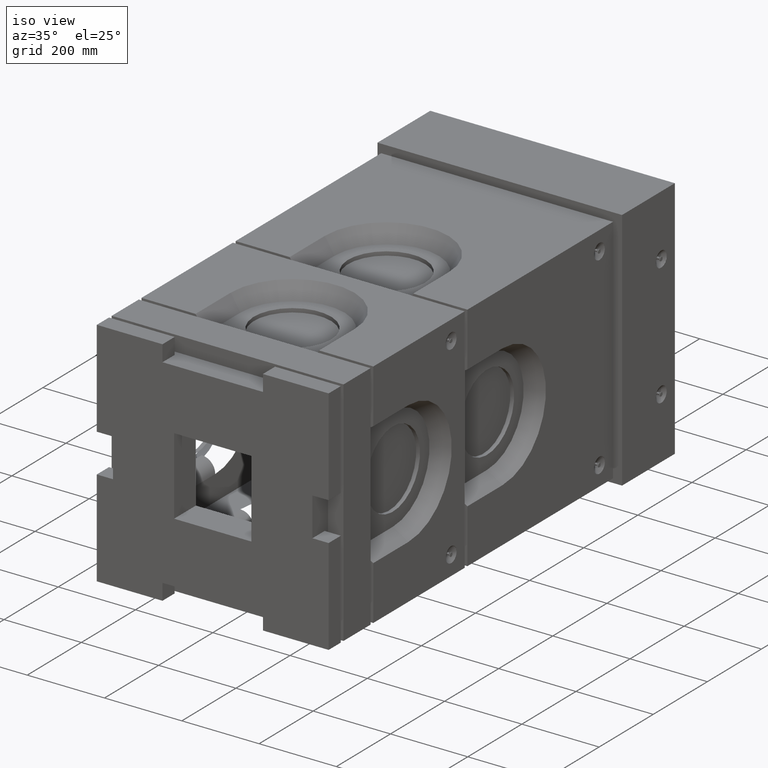
[diagram: clean part render]
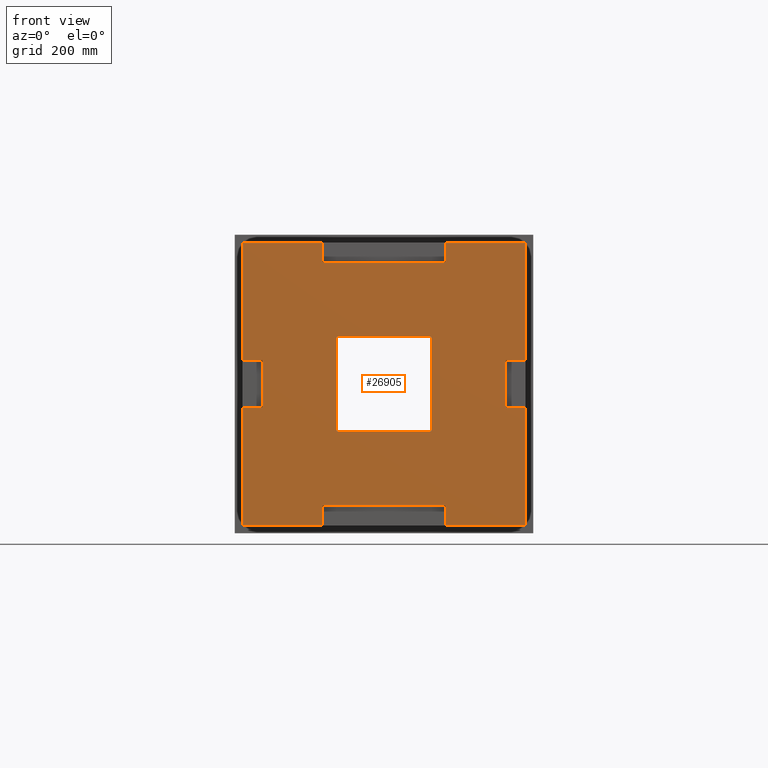
[diagram: tour spotlight — one face highlighted and labeled with its STEP entity id]
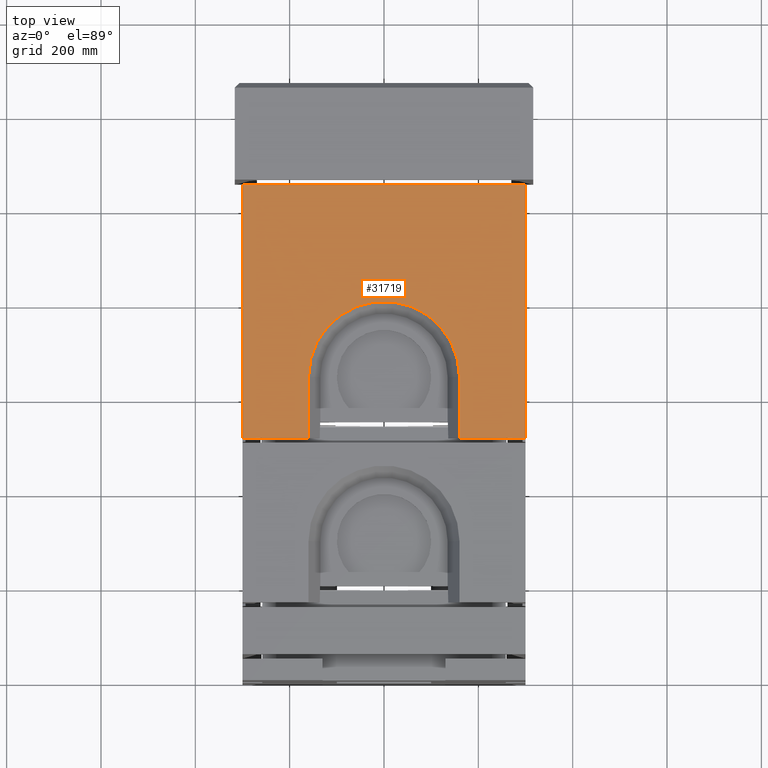
[diagram: tour spotlight — one face highlighted and labeled with its STEP entity id]
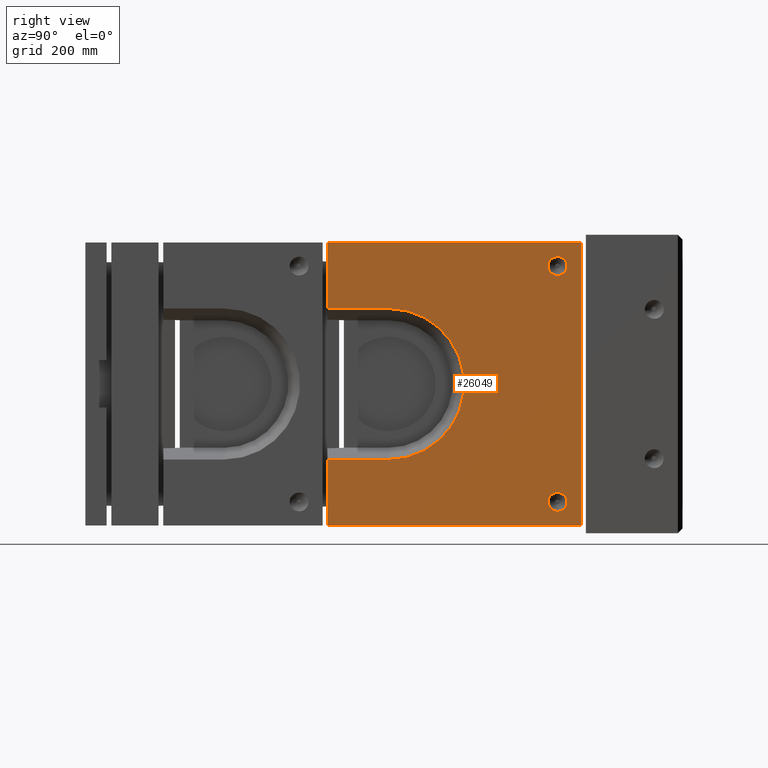
[diagram: tour spotlight — one face highlighted and labeled with its STEP entity id]
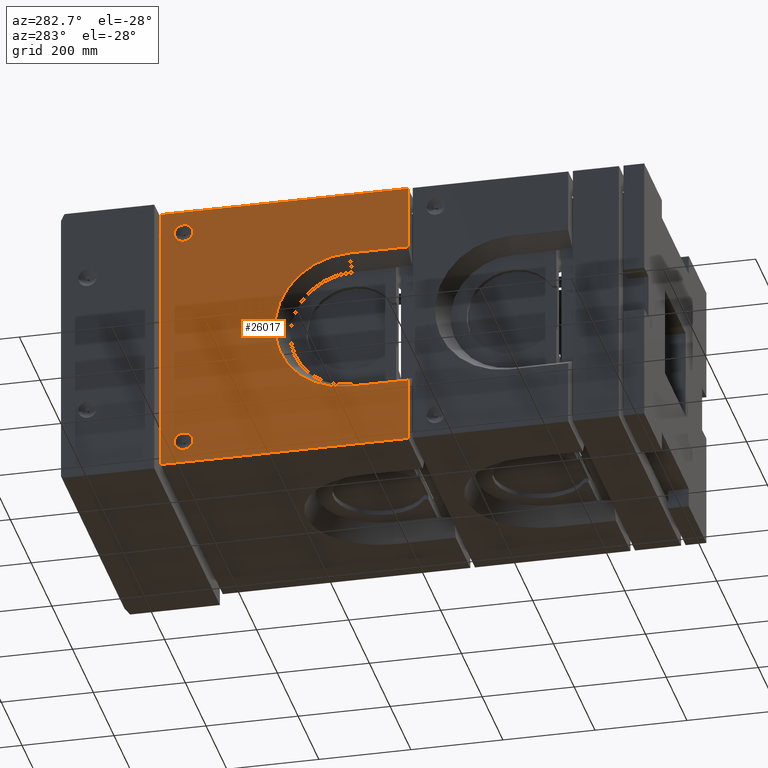
[diagram: tour spotlight — one face highlighted and labeled with its STEP entity id]
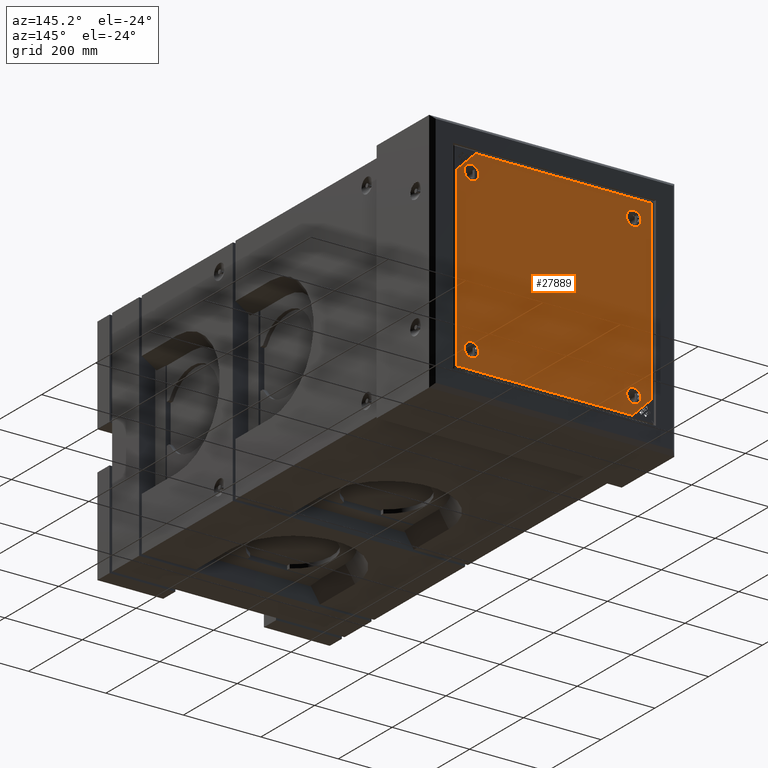
[diagram: tour spotlight — one face highlighted and labeled with its STEP entity id]
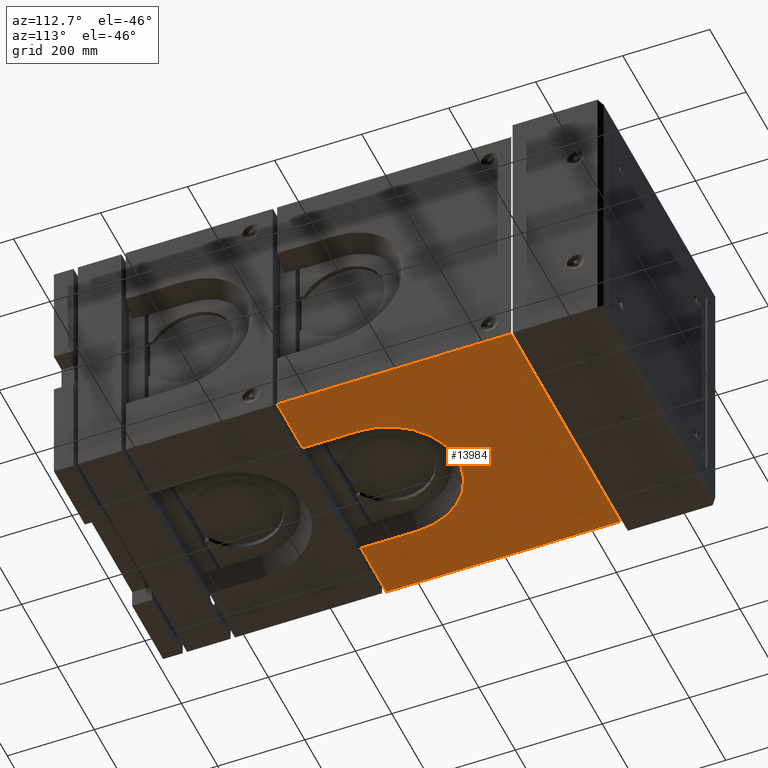
[diagram: tour spotlight — one face highlighted and labeled with its STEP entity id]
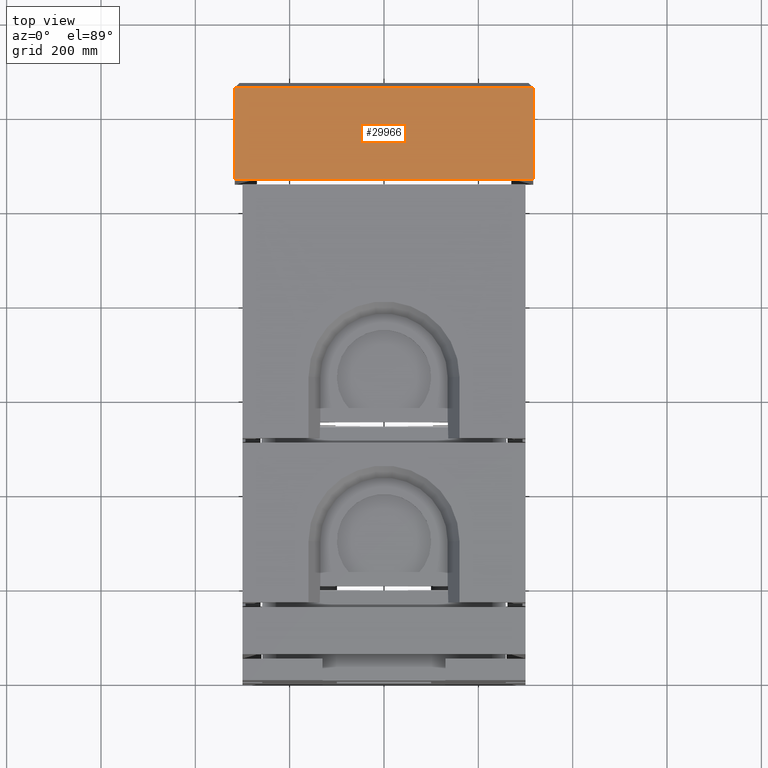
[diagram: tour spotlight — one face highlighted and labeled with its STEP entity id]
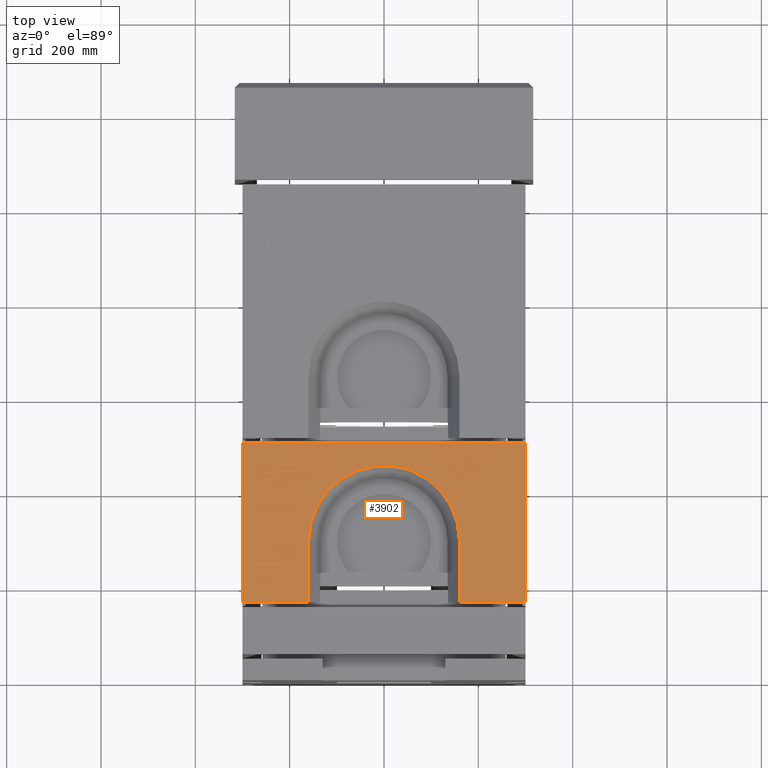
[diagram: tour spotlight — one face highlighted and labeled with its STEP entity id]
A machine part: a face-by-face anatomy tour. The part has 329 B-rep faces; the first image is the clean iso view, then the 8 largest visible faces are spotlighted one at a time (largest first), each with its STEP entity span.

Face 1 — front view, entity #26905. In plain terms, the highlighted planar face has unit normal (0, -1, -0).
Definition (entity closure, byte-faithful):
#43 = EDGE_CURVE ( 'NONE', #4884, #3213, #13902, .T. ) ;
#89 = LINE ( 'NONE', #30516, #7905 ) ;
#149 = EDGE_CURVE ( 'NONE', #20626, #8995, #26179, .T. ) ;
#1016 = ORIENTED_EDGE ( 'NONE', *, *, #13910, .T. ) ;
#1089 = AXIS2_PLACEMENT_3D ( 'NONE', #29498, #32033, #29616 ) ;
#1461 = CARTESIAN_POINT ( 'NONE',  ( -129.9999999999999432, 0.0000000000000000000, -257.9999999999998863 ) ) ;
#1503 = CARTESIAN_POINT ( 'NONE',  ( -99.99999999999997158, 0.0000000000000000000, -99.99999999999992895 ) ) ;
#1563 = ORIENTED_EDGE ( 'NONE', *, *, #7083, .F. ) ;
#2000 = VERTEX_POINT ( 'NONE', #15356 ) ;
#2449 = EDGE_CURVE ( 'NONE', #11666, #7735, #7582, .T. ) ;
#2890 = CARTESIAN_POINT ( 'NONE',  ( -300.0000000000000000, 0.0000000000000000000, -299.9999999999999432 ) ) ;
#2944 = EDGE_CURVE ( 'NONE', #32383, #13855, #14836, .T. ) ;
#3106 = VERTEX_POINT ( 'NONE', #25013 ) ;
#3162 = EDGE_CURVE ( 'NONE', #2000, #32583, #89, .T. ) ;
#3213 = VERTEX_POINT ( 'NONE', #14802 ) ;
#3271 = CARTESIAN_POINT ( 'NONE',  ( -300.0000000000000000, 0.0000000000000000000, 50.00000000000004263 ) ) ;
#3425 = DIRECTION ( 'NONE',  ( 1.110223024625156738E-15, 0.0000000000000000000, -1.000000000000000000 ) ) ;
#3476 = DIRECTION ( 'NONE',  ( 2.775557561562891844E-16, 0.0000000000000000000, 1.000000000000000000 ) ) ;
#3501 = ORIENTED_EDGE ( 'NONE', *, *, #11117, .T. ) ;
#4163 = DIRECTION ( 'NONE',  ( 1.000000000000000000, 0.0000000000000000000, 0.0000000000000000000 ) ) ;
#4410 = VECTOR ( 'NONE', #3476, 1000.000000000000000 ) ;
#4509 = LINE ( 'NONE', #21072, #15492 ) ;
#4556 = CARTESIAN_POINT ( 'NONE',  ( 99.99999999999997158, 0.0000000000000000000, 100.0000000000000284 ) ) ;
#4841 = CARTESIAN_POINT ( 'NONE',  ( 300.0000000000000000, 0.0000000000000000000, 300.0000000000000568 ) ) ;
#4884 = VERTEX_POINT ( 'NONE', #24958 ) ;
#4891 = EDGE_LOOP ( 'NONE', ( #19466, #13633, #14086, #30423, #1016, #21986, #3501, #9124, #5456, #20386, #14154, #14327, #7536, #6610, #1563, #22252, #29527, #33394, #19013, #14677 ) ) ;
#4892 = LINE ( 'NONE', #2890, #24928 ) ;
#5089 = EDGE_CURVE ( 'NONE', #7271, #32383, #4509, .T. ) ;
#5451 = ORIENTED_EDGE ( 'NONE', *, *, #3162, .T. ) ;
#5456 = ORIENTED_EDGE ( 'NONE', *, *, #26298, .T. ) ;
#5739 = LINE ( 'NONE', #9859, #24124 ) ;
#6353 = LINE ( 'NONE', #8862, #27211 ) ;
#6515 = DIRECTION ( 'NONE',  ( 1.000000000000000000, 0.0000000000000000000, 0.0000000000000000000 ) ) ;
#6610 = ORIENTED_EDGE ( 'NONE', *, *, #6929, .F. ) ;
#6631 = DIRECTION ( 'NONE',  ( 0.0000000000000000000, 0.0000000000000000000, 1.000000000000000000 ) ) ;
#6929 = EDGE_CURVE ( 'NONE', #13709, #18448, #24979, .T. ) ;
#7083 = EDGE_CURVE ( 'NONE', #26560, #13709, #10674, .T. ) ;
#7213 = DIRECTION ( 'NONE',  ( 0.0000000000000000000, 0.0000000000000000000, -1.000000000000000000 ) ) ;
#7271 = VERTEX_POINT ( 'NONE', #3271 ) ;
#7528 = VECTOR ( 'NONE', #7213, 1000.000000000000000 ) ;
#7536 = ORIENTED_EDGE ( 'NONE', *, *, #25737, .T. ) ;
#7582 = LINE ( 'NONE', #15771, #24746 ) ;
#7632 = CARTESIAN_POINT ( 'NONE',  ( -99.99999999999997158, 0.0000000000000000000, 100.0000000000000284 ) ) ;
#7735 = VERTEX_POINT ( 'NONE', #26526 ) ;
#7775 = CARTESIAN_POINT ( 'NONE',  ( -257.9999999999999432, 0.0000000000000000000, -49.99999999999993605 ) ) ;
#7905 = VECTOR ( 'NONE', #17205, 1000.000000000000000 ) ;
#8231 = EDGE_CURVE ( 'NONE', #3106, #23125, #18709, .T. ) ;
#8322 = VECTOR ( 'NONE', #12510, 1000.000000000000000 ) ;
#8439 = LINE ( 'NONE', #20641, #26023 ) ;
#8463 = CARTESIAN_POINT ( 'NONE',  ( 129.9999999999999716, 0.0000000000000000000, -257.9999999999998863 ) ) ;
#8615 = CARTESIAN_POINT ( 'NONE',  ( -129.9999999999999432, 0.0000000000000000000, 300.0000000000000568 ) ) ;
#8620 = VECTOR ( 'NONE', #20076, 1000.000000000000000 ) ;
#8728 = LINE ( 'NONE', #25035, #33752 ) ;
#8862 = CARTESIAN_POINT ( 'NONE',  ( -129.9999999999999432, 0.0000000000000000000, -257.9999999999998863 ) ) ;
#8995 = VERTEX_POINT ( 'NONE', #1461 ) ;
#9124 = ORIENTED_EDGE ( 'NONE', *, *, #43, .T. ) ;
#9461 = CARTESIAN_POINT ( 'NONE',  ( -129.9999999999999432, 0.0000000000000000000, -299.9999999999998295 ) ) ;
#9859 = CARTESIAN_POINT ( 'NONE',  ( 300.0000000000000000, 0.0000000000000000000, -49.99999999999993605 ) ) ;
#10426 = LINE ( 'NONE', #12597, #14886 ) ;
#10674 = LINE ( 'NONE', #22150, #16778 ) ;
#11117 = EDGE_CURVE ( 'NONE', #8995, #4884, #6353, .T. ) ;
#11596 = EDGE_CURVE ( 'NONE', #19379, #2000, #19785, .T. ) ;
#11664 = EDGE_CURVE ( 'NONE', #32583, #25979, #8728, .T. ) ;
#11666 = VERTEX_POINT ( 'NONE', #11865 ) ;
#11865 = CARTESIAN_POINT ( 'NONE',  ( -300.0000000000000000, 0.0000000000000000000, -49.99999999999993605 ) ) ;
#12063 = CARTESIAN_POINT ( 'NONE',  ( 300.0000000000000000, 0.0000000000000000000, 300.0000000000000568 ) ) ;
#12350 = DIRECTION ( 'NONE',  ( 1.000000000000000000, 0.0000000000000000000, 0.0000000000000000000 ) ) ;
#12510 = DIRECTION ( 'NONE',  ( 1.000000000000000000, 0.0000000000000000000, 0.0000000000000000000 ) ) ;
#12597 = CARTESIAN_POINT ( 'NONE',  ( 300.0000000000000000, 0.0000000000000000000, 300.0000000000000568 ) ) ;
#12696 = CARTESIAN_POINT ( 'NONE',  ( -300.0000000000000000, 0.0000000000000000000, 300.0000000000000568 ) ) ;
#12845 = VERTEX_POINT ( 'NONE', #28009 ) ;
#12846 = LINE ( 'NONE', #20948, #16470 ) ;
#13224 = CARTESIAN_POINT ( 'NONE',  ( -300.0000000000000000, 0.0000000000000000000, 300.0000000000000568 ) ) ;
#13344 = VECTOR ( 'NONE', #20575, 1000.000000000000000 ) ;
#13633 = ORIENTED_EDGE ( 'NONE', *, *, #2944, .T. ) ;
#13709 = VERTEX_POINT ( 'NONE', #12063 ) ;
#13855 = VERTEX_POINT ( 'NONE', #22486 ) ;
#13902 = LINE ( 'NONE', #8463, #26217 ) ;
#13910 = EDGE_CURVE ( 'NONE', #7735, #20626, #4892, .T. ) ;
#14086 = ORIENTED_EDGE ( 'NONE', *, *, #14989, .T. ) ;
#14154 = ORIENTED_EDGE ( 'NONE', *, *, #33764, .T. ) ;
#14213 = LINE ( 'NONE', #17040, #27365 ) ;
#14327 = ORIENTED_EDGE ( 'NONE', *, *, #8231, .T. ) ;
#14550 = EDGE_CURVE ( 'NONE', #15669, #7271, #33922, .T. ) ;
#14554 = VECTOR ( 'NONE', #25551, 1000.000000000000000 ) ;
#14677 = ORIENTED_EDGE ( 'NONE', *, *, #14550, .T. ) ;
#14802 = CARTESIAN_POINT ( 'NONE',  ( 129.9999999999999716, 0.0000000000000000000, -299.9999999999999432 ) ) ;
#14836 = LINE ( 'NONE', #19188, #19366 ) ;
#14886 = VECTOR ( 'NONE', #22679, 1000.000000000000000 ) ;
#14989 = EDGE_CURVE ( 'NONE', #13855, #11666, #32235, .T. ) ;
#15037 = CARTESIAN_POINT ( 'NONE',  ( -129.9999999999999432, 0.0000000000000000000, -299.9999999999998295 ) ) ;
#15356 = CARTESIAN_POINT ( 'NONE',  ( 99.99999999999997158, 0.0000000000000000000, -99.99999999999992895 ) ) ;
#15492 = VECTOR ( 'NONE', #31721, 1000.000000000000000 ) ;
#15506 = CARTESIAN_POINT ( 'NONE',  ( -99.99999999999997158, 0.0000000000000000000, 100.0000000000000284 ) ) ;
#15669 = VERTEX_POINT ( 'NONE', #13224 ) ;
#15771 = CARTESIAN_POINT ( 'NONE',  ( -300.0000000000000000, 0.0000000000000000000, 300.0000000000000568 ) ) ;
#16257 = ORIENTED_EDGE ( 'NONE', *, *, #11664, .T. ) ;
#16288 = DIRECTION ( 'NONE',  ( 0.0000000000000000000, 0.0000000000000000000, -1.000000000000000000 ) ) ;
#16470 = VECTOR ( 'NONE', #26090, 1000.000000000000000 ) ;
#16486 = VERTEX_POINT ( 'NONE', #8615 ) ;
#16715 = ORIENTED_EDGE ( 'NONE', *, *, #11596, .T. ) ;
#16778 = VECTOR ( 'NONE', #6515, 1000.000000000000000 ) ;
#16906 = VECTOR ( 'NONE', #12350, 1000.000000000000000 ) ;
#17022 = ORIENTED_EDGE ( 'NONE', *, *, #21147, .T. ) ;
#17040 = CARTESIAN_POINT ( 'NONE',  ( -300.0000000000000000, 0.0000000000000000000, -299.9999999999999432 ) ) ;
#17041 = FACE_BOUND ( 'NONE', #32748, .T. ) ;
#17205 = DIRECTION ( 'NONE',  ( -1.000000000000000000, 0.0000000000000000000, 0.0000000000000000000 ) ) ;
#18401 = CARTESIAN_POINT ( 'NONE',  ( 300.0000000000000000, 0.0000000000000000000, -49.99999999999993605 ) ) ;
#18448 = VERTEX_POINT ( 'NONE', #27664 ) ;
#18709 = LINE ( 'NONE', #26931, #4410 ) ;
#18739 = DIRECTION ( 'NONE',  ( 0.0000000000000000000, 0.0000000000000000000, -1.000000000000000000 ) ) ;
#19002 = EDGE_CURVE ( 'NONE', #15669, #16486, #24825, .T. ) ;
#19013 = ORIENTED_EDGE ( 'NONE', *, *, #19002, .F. ) ;
#19188 = CARTESIAN_POINT ( 'NONE',  ( -258.0000000000000568, 0.0000000000000000000, 50.00000000000004263 ) ) ;
#19366 = VECTOR ( 'NONE', #3425, 1000.000000000000000 ) ;
#19379 = VERTEX_POINT ( 'NONE', #22093 ) ;
#19462 = CARTESIAN_POINT ( 'NONE',  ( 129.9999999999999716, 0.0000000000000000000, 300.0000000000000568 ) ) ;
#19466 = ORIENTED_EDGE ( 'NONE', *, *, #5089, .T. ) ;
#19785 = LINE ( 'NONE', #4556, #7528 ) ;
#20076 = DIRECTION ( 'NONE',  ( 0.0000000000000000000, 0.0000000000000000000, -1.000000000000000000 ) ) ;
#20386 = ORIENTED_EDGE ( 'NONE', *, *, #25351, .F. ) ;
#20575 = DIRECTION ( 'NONE',  ( -1.000000000000000000, 0.0000000000000000000, 0.0000000000000000000 ) ) ;
#20626 = VERTEX_POINT ( 'NONE', #15037 ) ;
#20641 = CARTESIAN_POINT ( 'NONE',  ( 129.9999999999999432, 0.0000000000000000000, 258.0000000000000568 ) ) ;
#20948 = CARTESIAN_POINT ( 'NONE',  ( -129.9999999999999432, 0.0000000000000000000, 258.0000000000000568 ) ) ;
#21072 = CARTESIAN_POINT ( 'NONE',  ( -300.0000000000000000, 0.0000000000000000000, 50.00000000000004263 ) ) ;
#21083 = DIRECTION ( 'NONE',  ( 0.0000000000000000000, 0.0000000000000000000, -1.000000000000000000 ) ) ;
#21147 = EDGE_CURVE ( 'NONE', #25979, #19379, #23042, .T. ) ;
#21719 = CARTESIAN_POINT ( 'NONE',  ( -129.9999999999999432, 0.0000000000000000000, 258.0000000000000568 ) ) ;
#21889 = EDGE_CURVE ( 'NONE', #12845, #25999, #28329, .T. ) ;
#21986 = ORIENTED_EDGE ( 'NONE', *, *, #149, .T. ) ;
#22007 = FACE_OUTER_BOUND ( 'NONE', #4891, .T. ) ;
#22093 = CARTESIAN_POINT ( 'NONE',  ( 99.99999999999997158, 0.0000000000000000000, 100.0000000000000284 ) ) ;
#22115 = DIRECTION ( 'NONE',  ( 1.000000000000000000, 0.0000000000000000000, 0.0000000000000000000 ) ) ;
#22150 = CARTESIAN_POINT ( 'NONE',  ( -300.0000000000000000, 0.0000000000000000000, 300.0000000000000568 ) ) ;
#22252 = ORIENTED_EDGE ( 'NONE', *, *, #27516, .T. ) ;
#22486 = CARTESIAN_POINT ( 'NONE',  ( -257.9999999999999432, 0.0000000000000000000, -49.99999999999993605 ) ) ;
#22679 = DIRECTION ( 'NONE',  ( 0.0000000000000000000, 0.0000000000000000000, -1.000000000000000000 ) ) ;
#23042 = LINE ( 'NONE', #7632, #8322 ) ;
#23125 = VERTEX_POINT ( 'NONE', #29229 ) ;
#23695 = CARTESIAN_POINT ( 'NONE',  ( 300.0000000000000000, 0.0000000000000000000, -299.9999999999999432 ) ) ;
#24124 = VECTOR ( 'NONE', #28154, 1000.000000000000000 ) ;
#24746 = VECTOR ( 'NONE', #21083, 1000.000000000000000 ) ;
#24825 = LINE ( 'NONE', #30592, #14554 ) ;
#24928 = VECTOR ( 'NONE', #26132, 1000.000000000000000 ) ;
#24958 = CARTESIAN_POINT ( 'NONE',  ( 129.9999999999999716, 0.0000000000000000000, -257.9999999999998863 ) ) ;
#24979 = LINE ( 'NONE', #4841, #8620 ) ;
#25013 = CARTESIAN_POINT ( 'NONE',  ( 258.0000000000000000, 0.0000000000000000000, -49.99999999999993605 ) ) ;
#25035 = CARTESIAN_POINT ( 'NONE',  ( -99.99999999999997158, 0.0000000000000000000, -99.99999999999992895 ) ) ;
#25351 = EDGE_CURVE ( 'NONE', #32812, #27697, #10426, .T. ) ;
#25551 = DIRECTION ( 'NONE',  ( 1.000000000000000000, 0.0000000000000000000, 0.0000000000000000000 ) ) ;
#25737 = EDGE_CURVE ( 'NONE', #23125, #18448, #26761, .T. ) ;
#25979 = VERTEX_POINT ( 'NONE', #15506 ) ;
#25999 = VERTEX_POINT ( 'NONE', #28480 ) ;
#26023 = VECTOR ( 'NONE', #28398, 1000.000000000000000 ) ;
#26090 = DIRECTION ( 'NONE',  ( 0.0000000000000000000, 0.0000000000000000000, 1.000000000000000000 ) ) ;
#26132 = DIRECTION ( 'NONE',  ( 1.000000000000000000, 0.0000000000000000000, 0.0000000000000000000 ) ) ;
#26179 = LINE ( 'NONE', #9461, #33999 ) ;
#26217 = VECTOR ( 'NONE', #16288, 1000.000000000000000 ) ;
#26298 = EDGE_CURVE ( 'NONE', #3213, #27697, #14213, .T. ) ;
#26308 = VECTOR ( 'NONE', #32503, 1000.000000000000000 ) ;
#26526 = CARTESIAN_POINT ( 'NONE',  ( -300.0000000000000000, 0.0000000000000000000, -299.9999999999999432 ) ) ;
#26560 = VERTEX_POINT ( 'NONE', #19462 ) ;
#26644 = PLANE ( 'NONE',  #1089 ) ;
#26761 = LINE ( 'NONE', #29974, #16906 ) ;
#26905 = ADVANCED_FACE ( 'NONE', ( #22007, #17041 ), #26644, .T. ) ;
#26931 = CARTESIAN_POINT ( 'NONE',  ( 258.0000000000000000, 0.0000000000000000000, -49.99999999999993605 ) ) ;
#27211 = VECTOR ( 'NONE', #22115, 1000.000000000000000 ) ;
#27365 = VECTOR ( 'NONE', #4163, 1000.000000000000000 ) ;
#27516 = EDGE_CURVE ( 'NONE', #26560, #12845, #8439, .T. ) ;
#27563 = DIRECTION ( 'NONE',  ( 0.0000000000000000000, 0.0000000000000000000, 1.000000000000000000 ) ) ;
#27664 = CARTESIAN_POINT ( 'NONE',  ( 300.0000000000000000, 0.0000000000000000000, 50.00000000000004263 ) ) ;
#27697 = VERTEX_POINT ( 'NONE', #23695 ) ;
#28009 = CARTESIAN_POINT ( 'NONE',  ( 129.9999999999999432, 0.0000000000000000000, 258.0000000000000568 ) ) ;
#28022 = CARTESIAN_POINT ( 'NONE',  ( -258.0000000000000568, 0.0000000000000000000, 50.00000000000004263 ) ) ;
#28154 = DIRECTION ( 'NONE',  ( -1.000000000000000000, 0.0000000000000000000, 0.0000000000000000000 ) ) ;
#28329 = LINE ( 'NONE', #21719, #26308 ) ;
#28398 = DIRECTION ( 'NONE',  ( -6.608470384673552010E-16, 0.0000000000000000000, -1.000000000000000000 ) ) ;
#28480 = CARTESIAN_POINT ( 'NONE',  ( -129.9999999999999432, 0.0000000000000000000, 258.0000000000000568 ) ) ;
#29229 = CARTESIAN_POINT ( 'NONE',  ( 258.0000000000000000, 0.0000000000000000000, 50.00000000000004263 ) ) ;
#29379 = VECTOR ( 'NONE', #18739, 1000.000000000000000 ) ;
#29498 = CARTESIAN_POINT ( 'NONE',  ( -300.0000000000000000, 0.0000000000000000000, 300.0000000000000568 ) ) ;
#29527 = ORIENTED_EDGE ( 'NONE', *, *, #21889, .T. ) ;
#29616 = DIRECTION ( 'NONE',  ( -1.000000000000000000, 0.0000000000000000000, -0.0000000000000000000 ) ) ;
#29974 = CARTESIAN_POINT ( 'NONE',  ( 258.0000000000000000, 0.0000000000000000000, 50.00000000000004263 ) ) ;
#30423 = ORIENTED_EDGE ( 'NONE', *, *, #2449, .T. ) ;
#30516 = CARTESIAN_POINT ( 'NONE',  ( 99.99999999999997158, 0.0000000000000000000, -99.99999999999992895 ) ) ;
#30592 = CARTESIAN_POINT ( 'NONE',  ( -300.0000000000000000, 0.0000000000000000000, 300.0000000000000568 ) ) ;
#31292 = EDGE_CURVE ( 'NONE', #25999, #16486, #12846, .T. ) ;
#31721 = DIRECTION ( 'NONE',  ( 1.000000000000000000, 0.0000000000000000000, 0.0000000000000000000 ) ) ;
#32033 = DIRECTION ( 'NONE',  ( 0.0000000000000000000, -1.000000000000000000, -0.0000000000000000000 ) ) ;
#32235 = LINE ( 'NONE', #7775, #13344 ) ;
#32383 = VERTEX_POINT ( 'NONE', #28022 ) ;
#32503 = DIRECTION ( 'NONE',  ( -1.000000000000000000, -0.0000000000000000000, 0.0000000000000000000 ) ) ;
#32583 = VERTEX_POINT ( 'NONE', #1503 ) ;
#32748 = EDGE_LOOP ( 'NONE', ( #17022, #16715, #5451, #16257 ) ) ;
#32812 = VERTEX_POINT ( 'NONE', #18401 ) ;
#33394 = ORIENTED_EDGE ( 'NONE', *, *, #31292, .T. ) ;
#33752 = VECTOR ( 'NONE', #27563, 1000.000000000000000 ) ;
#33764 = EDGE_CURVE ( 'NONE', #32812, #3106, #5739, .T. ) ;
#33922 = LINE ( 'NONE', #12696, #29379 ) ;
#33999 = VECTOR ( 'NONE', #6631, 1000.000000000000000 ) ;

Face 2 — top view, entity #31719. In plain terms, the highlighted planar face has unit normal (0, -0, -1).
Definition (entity closure, byte-faithful):
#736 = EDGE_CURVE ( 'NONE', #9267, #15807, #5697, .T. ) ;
#839 = DIRECTION ( 'NONE',  ( -1.000000000000000000, 0.0000000000000000000, -3.469446951953614682E-16 ) ) ;
#1028 = VECTOR ( 'NONE', #19673, 1000.000000000000000 ) ;
#1279 = ORIENTED_EDGE ( 'NONE', *, *, #736, .T. ) ;
#1309 = LINE ( 'NONE', #18130, #7089 ) ;
#1823 = AXIS2_PLACEMENT_3D ( 'NONE', #23946, #8519, #839 ) ;
#1843 = DIRECTION ( 'NONE',  ( 8.013947210383127555E-16, -1.000000000000000000, 5.126376437251042968E-32 ) ) ;
#2013 = VECTOR ( 'NONE', #26233, 1000.000000000000000 ) ;
#2228 = LINE ( 'NONE', #24169, #32551 ) ;
#3150 = AXIS2_PLACEMENT_3D ( 'NONE', #33086, #9583, #20006 ) ;
#3392 = VECTOR ( 'NONE', #25331, 1000.000000000000000 ) ;
#3874 = VECTOR ( 'NONE', #1843, 1000.000000000000000 ) ;
#4401 = CARTESIAN_POINT ( 'NONE',  ( 160.0000000000001421, 393.0000000000018758, 300.0000000000002842 ) ) ;
#4805 = EDGE_LOOP ( 'NONE', ( #24701, #15562, #32513, #6275, #31711, #1279, #10678, #16446 ) ) ;
#5608 = CARTESIAN_POINT ( 'NONE',  ( -300.0000000000000000, 513.0000000000019327, 300.0000000000001705 ) ) ;
#5697 = LINE ( 'NONE', #12955, #2013 ) ;
#6044 = EDGE_CURVE ( 'NONE', #33825, #10717, #20794, .T. ) ;
#6275 = ORIENTED_EDGE ( 'NONE', *, *, #6044, .F. ) ;
#6345 = EDGE_CURVE ( 'NONE', #10717, #13626, #1309, .T. ) ;
#6423 = EDGE_CURVE ( 'NONE', #20497, #24512, #16840, .T. ) ;
#6881 = CARTESIAN_POINT ( 'NONE',  ( -160.0000000000000568, 643.0000000000019327, 300.0000000000001705 ) ) ;
#7089 = VECTOR ( 'NONE', #31311, 1000.000000000000000 ) ;
#7251 = CARTESIAN_POINT ( 'NONE',  ( -300.0000000000003979, 1051.000000000001819, 300.0000000000001705 ) ) ;
#8374 = LINE ( 'NONE', #25282, #3874 ) ;
#8519 = DIRECTION ( 'NONE',  ( 4.617429402512937596E-16, -1.665334536937734811E-16, -1.000000000000000000 ) ) ;
#9267 = VERTEX_POINT ( 'NONE', #5608 ) ;
#9583 = DIRECTION ( 'NONE',  ( 4.617429402512937596E-16, -1.665334536937734811E-16, -1.000000000000000000 ) ) ;
#9805 = PLANE ( 'NONE',  #3150 ) ;
#10678 = ORIENTED_EDGE ( 'NONE', *, *, #27814, .T. ) ;
#10717 = VERTEX_POINT ( 'NONE', #15938 ) ;
#10836 = EDGE_CURVE ( 'NONE', #33825, #9267, #8374, .T. ) ;
#11065 = EDGE_CURVE ( 'NONE', #20900, #13626, #2228, .T. ) ;
#12955 = CARTESIAN_POINT ( 'NONE',  ( -300.0000000000000000, 513.0000000000019327, 300.0000000000001705 ) ) ;
#13612 = LINE ( 'NONE', #4401, #3392 ) ;
#13626 = VERTEX_POINT ( 'NONE', #29810 ) ;
#14009 = CARTESIAN_POINT ( 'NONE',  ( -300.0000000000003979, 1051.000000000001819, 300.0000000000001705 ) ) ;
#15562 = ORIENTED_EDGE ( 'NONE', *, *, #11065, .T. ) ;
#15807 = VERTEX_POINT ( 'NONE', #31786 ) ;
#15902 = DIRECTION ( 'NONE',  ( 1.000000000000000000, 1.907720574944769541E-16, 4.617429402512937596E-16 ) ) ;
#15938 = CARTESIAN_POINT ( 'NONE',  ( 299.9999999999996021, 1051.000000000001819, 300.0000000000003979 ) ) ;
#16446 = ORIENTED_EDGE ( 'NONE', *, *, #6423, .T. ) ;
#16619 = DIRECTION ( 'NONE',  ( 1.000000000000000000, 1.907720574944769541E-16, 4.617429402512937596E-16 ) ) ;
#16840 = CIRCLE ( 'NONE', #1823, 159.9999999999999716 ) ;
#16886 = CARTESIAN_POINT ( 'NONE',  ( -160.0000000000000568, 643.0000000000019327, 300.0000000000001705 ) ) ;
#18130 = CARTESIAN_POINT ( 'NONE',  ( 299.9999999999996021, 1086.000000000002046, 300.0000000000003979 ) ) ;
#19673 = DIRECTION ( 'NONE',  ( -6.903724185757971014E-16, 1.000000000000000000, 0.0000000000000000000 ) ) ;
#20006 = DIRECTION ( 'NONE',  ( -1.000000000000000000, -1.907720574944769541E-16, -4.617429402512937596E-16 ) ) ;
#20497 = VERTEX_POINT ( 'NONE', #16886 ) ;
#20794 = LINE ( 'NONE', #14009, #33924 ) ;
#20900 = VERTEX_POINT ( 'NONE', #23975 ) ;
#21133 = EDGE_CURVE ( 'NONE', #24512, #20900, #13612, .T. ) ;
#22613 = FACE_OUTER_BOUND ( 'NONE', #4805, .T. ) ;
#23441 = CARTESIAN_POINT ( 'NONE',  ( 159.9999999999999147, 643.0000000000019327, 300.0000000000002842 ) ) ;
#23946 = CARTESIAN_POINT ( 'NONE',  ( -5.551115123125782702E-14, 643.0000000000019327, 300.0000000000002842 ) ) ;
#23975 = CARTESIAN_POINT ( 'NONE',  ( 160.0000000000000284, 513.0000000000019327, 300.0000000000002842 ) ) ;
#24169 = CARTESIAN_POINT ( 'NONE',  ( -300.0000000000000000, 513.0000000000019327, 300.0000000000001705 ) ) ;
#24512 = VERTEX_POINT ( 'NONE', #23441 ) ;
#24701 = ORIENTED_EDGE ( 'NONE', *, *, #21133, .T. ) ;
#25282 = CARTESIAN_POINT ( 'NONE',  ( -300.0000000000004547, 1086.000000000001819, 300.0000000000001705 ) ) ;
#25331 = DIRECTION ( 'NONE',  ( 8.013947210383127555E-16, -1.000000000000000000, 5.126376437251042968E-32 ) ) ;
#26233 = DIRECTION ( 'NONE',  ( 1.000000000000000000, 1.907720574944769541E-16, 4.617429402512937596E-16 ) ) ;
#27814 = EDGE_CURVE ( 'NONE', #15807, #20497, #30920, .T. ) ;
#29810 = CARTESIAN_POINT ( 'NONE',  ( 300.0000000000000568, 513.0000000000020464, 300.0000000000003979 ) ) ;
#30920 = LINE ( 'NONE', #6881, #1028 ) ;
#31311 = DIRECTION ( 'NONE',  ( 8.013947210383127555E-16, -1.000000000000000000, 5.126376437251042968E-32 ) ) ;
#31711 = ORIENTED_EDGE ( 'NONE', *, *, #10836, .T. ) ;
#31719 = ADVANCED_FACE ( 'NONE', ( #22613 ), #9805, .F. ) ;
#31786 = CARTESIAN_POINT ( 'NONE',  ( -159.9999999999999716, 513.0000000000019327, 300.0000000000001705 ) ) ;
#32513 = ORIENTED_EDGE ( 'NONE', *, *, #6345, .F. ) ;
#32551 = VECTOR ( 'NONE', #15902, 1000.000000000000000 ) ;
#33086 = CARTESIAN_POINT ( 'NONE',  ( -300.0000000000004547, 1086.000000000001819, 300.0000000000001705 ) ) ;
#33825 = VERTEX_POINT ( 'NONE', #7251 ) ;
#33924 = VECTOR ( 'NONE', #16619, 1000.000000000000000 ) ;

Face 3 — right view, entity #26049. In plain terms, the highlighted planar face has unit normal (-1, -0, -0).
Definition (entity closure, byte-faithful):
#92 = DIRECTION ( 'NONE',  ( -1.000000000000000000, -1.907720574944769541E-16, -4.617429402512937596E-16 ) ) ;
#164 = ORIENTED_EDGE ( 'NONE', *, *, #6844, .T. ) ;
#618 = DIRECTION ( 'NONE',  ( 4.617429402512937596E-16, -1.665334536937734811E-16, -1.000000000000000000 ) ) ;
#719 = VECTOR ( 'NONE', #16124, 1000.000000000000000 ) ;
#1150 = EDGE_CURVE ( 'NONE', #13914, #13333, #29400, .T. ) ;
#1309 = LINE ( 'NONE', #18130, #7089 ) ;
#1340 = CARTESIAN_POINT ( 'NONE',  ( 299.9999999999998863, 1051.000000000001819, -299.9999999999996021 ) ) ;
#2540 = AXIS2_PLACEMENT_3D ( 'NONE', #19140, #3491, #21777 ) ;
#2798 = ORIENTED_EDGE ( 'NONE', *, *, #11758, .F. ) ;
#2968 = CIRCLE ( 'NONE', #16302, 159.9999999999999432 ) ;
#3491 = DIRECTION ( 'NONE',  ( -1.000000000000000000, -1.907720574944769541E-16, -4.617429402512937596E-16 ) ) ;
#4195 = ORIENTED_EDGE ( 'NONE', *, *, #16279, .F. ) ;
#4434 = CARTESIAN_POINT ( 'NONE',  ( 300.0000000000002842, 513.0000000000019327, -299.9999999999996021 ) ) ;
#4629 = ORIENTED_EDGE ( 'NONE', *, *, #6345, .T. ) ;
#5045 = CARTESIAN_POINT ( 'NONE',  ( 299.9999999999998863, 1086.000000000001819, -299.9999999999996021 ) ) ;
#5573 = ORIENTED_EDGE ( 'NONE', *, *, #31562, .F. ) ;
#6345 = EDGE_CURVE ( 'NONE', #10717, #13626, #1309, .T. ) ;
#6660 = ORIENTED_EDGE ( 'NONE', *, *, #15471, .T. ) ;
#6844 = EDGE_CURVE ( 'NONE', #29297, #13333, #20544, .T. ) ;
#7089 = VECTOR ( 'NONE', #31311, 1000.000000000000000 ) ;
#7348 = FACE_BOUND ( 'NONE', #21916, .T. ) ;
#7855 = CARTESIAN_POINT ( 'NONE',  ( 299.9999999999998863, 1051.000000000001819, -299.9999999999996021 ) ) ;
#8160 = EDGE_CURVE ( 'NONE', #29040, #15982, #17069, .T. ) ;
#8444 = EDGE_CURVE ( 'NONE', #23287, #23287, #27727, .T. ) ;
#8900 = DIRECTION ( 'NONE',  ( 4.617429402512937596E-16, -1.665334536937734811E-16, -1.000000000000000000 ) ) ;
#9095 = VECTOR ( 'NONE', #21196, 1000.000000000000000 ) ;
#9125 = LINE ( 'NONE', #1340, #32077 ) ;
#9140 = CARTESIAN_POINT ( 'NONE',  ( 299.9999999999996589, 1001.000000000001933, 270.0000000000004547 ) ) ;
#9478 = DIRECTION ( 'NONE',  ( 4.617429402512937596E-16, -1.665334536937734811E-16, -1.000000000000000000 ) ) ;
#9816 = CARTESIAN_POINT ( 'NONE',  ( 300.0000000000002842, 513.0000000000019327, -299.9999999999996021 ) ) ;
#9948 = AXIS2_PLACEMENT_3D ( 'NONE', #33240, #12358, #12474 ) ;
#10374 = VERTEX_POINT ( 'NONE', #29693 ) ;
#10717 = VERTEX_POINT ( 'NONE', #15938 ) ;
#10728 = LINE ( 'NONE', #10891, #9095 ) ;
#10891 = CARTESIAN_POINT ( 'NONE',  ( 300.0000000000001705, 643.0000000000019327, -159.9999999999995453 ) ) ;
#11070 = EDGE_CURVE ( 'NONE', #28598, #28598, #15278, .T. ) ;
#11276 = VECTOR ( 'NONE', #9478, 1000.000000000000000 ) ;
#11758 = EDGE_CURVE ( 'NONE', #10374, #29040, #2968, .T. ) ;
#12235 = FACE_OUTER_BOUND ( 'NONE', #23584, .T. ) ;
#12358 = DIRECTION ( 'NONE',  ( -1.000000000000000000, -1.907720574944769541E-16, -4.617429402512937596E-16 ) ) ;
#12474 = DIRECTION ( 'NONE',  ( 0.0000000000000000000, 0.0000000000000000000, 1.000000000000000000 ) ) ;
#12575 = DIRECTION ( 'NONE',  ( 8.013947210383127555E-16, -1.000000000000000000, 5.126376437251042968E-32 ) ) ;
#13333 = VERTEX_POINT ( 'NONE', #9816 ) ;
#13626 = VERTEX_POINT ( 'NONE', #29810 ) ;
#13914 = VERTEX_POINT ( 'NONE', #7855 ) ;
#13993 = CARTESIAN_POINT ( 'NONE',  ( 300.0000000000001137, 513.0000000000019327, 160.0000000000003979 ) ) ;
#14634 = CARTESIAN_POINT ( 'NONE',  ( 300.0000000000000000, 643.0000000000019327, 160.0000000000003411 ) ) ;
#15278 = CIRCLE ( 'NONE', #2540, 20.00000000000004619 ) ;
#15471 = EDGE_CURVE ( 'NONE', #13626, #15982, #26041, .T. ) ;
#15826 = CARTESIAN_POINT ( 'NONE',  ( 300.0000000000000568, 643.0000000000019327, 4.163336342344337027E-13 ) ) ;
#15844 = PLANE ( 'NONE',  #24747 ) ;
#15938 = CARTESIAN_POINT ( 'NONE',  ( 299.9999999999996021, 1051.000000000001819, 300.0000000000003979 ) ) ;
#15982 = VERTEX_POINT ( 'NONE', #13993 ) ;
#16124 = DIRECTION ( 'NONE',  ( 8.013947210383126569E-16, -1.000000000000000000, 2.220446049250314067E-16 ) ) ;
#16279 = EDGE_CURVE ( 'NONE', #29297, #10374, #10728, .T. ) ;
#16302 = AXIS2_PLACEMENT_3D ( 'NONE', #15826, #23537, #26064 ) ;
#17069 = LINE ( 'NONE', #18330, #719 ) ;
#18130 = CARTESIAN_POINT ( 'NONE',  ( 299.9999999999996021, 1086.000000000002046, 300.0000000000003979 ) ) ;
#18330 = CARTESIAN_POINT ( 'NONE',  ( 300.0000000000000000, 643.0000000000019327, 160.0000000000003411 ) ) ;
#19140 = CARTESIAN_POINT ( 'NONE',  ( 299.9999999999998863, 1001.000000000001933, -249.9999999999995737 ) ) ;
#19375 = ORIENTED_EDGE ( 'NONE', *, *, #11070, .T. ) ;
#20544 = LINE ( 'NONE', #32574, #32842 ) ;
#20962 = CARTESIAN_POINT ( 'NONE',  ( 300.0000000000002842, 513.0000000000019327, -159.9999999999995453 ) ) ;
#21196 = DIRECTION ( 'NONE',  ( -8.013947210383128541E-16, 1.000000000000000000, 1.110223024625156047E-16 ) ) ;
#21777 = DIRECTION ( 'NONE',  ( 0.0000000000000000000, 0.0000000000000000000, 1.000000000000000000 ) ) ;
#21916 = EDGE_LOOP ( 'NONE', ( #33156 ) ) ;
#22406 = CARTESIAN_POINT ( 'NONE',  ( 299.9999999999998863, 1001.000000000001933, -229.9999999999995453 ) ) ;
#22433 = VECTOR ( 'NONE', #12575, 1000.000000000000000 ) ;
#23287 = VERTEX_POINT ( 'NONE', #9140 ) ;
#23335 = DIRECTION ( 'NONE',  ( -4.617429402512937596E-16, 1.665334536937734811E-16, 1.000000000000000000 ) ) ;
#23449 = CARTESIAN_POINT ( 'NONE',  ( 299.9999999999998863, 1086.000000000001819, -299.9999999999996021 ) ) ;
#23537 = DIRECTION ( 'NONE',  ( 1.000000000000000000, 1.907720574944769541E-16, 4.617429402512937596E-16 ) ) ;
#23584 = EDGE_LOOP ( 'NONE', ( #2798, #4195, #164, #31064, #5573, #4629, #6660, #29893 ) ) ;
#24747 = AXIS2_PLACEMENT_3D ( 'NONE', #5045, #92, #23335 ) ;
#26041 = LINE ( 'NONE', #4434, #11276 ) ;
#26049 = ADVANCED_FACE ( 'NONE', ( #33575, #7348, #12235 ), #15844, .F. ) ;
#26064 = DIRECTION ( 'NONE',  ( 3.469446951953615668E-16, 0.0000000000000000000, -1.000000000000000000 ) ) ;
#27727 = CIRCLE ( 'NONE', #9948, 20.00000000000001776 ) ;
#28598 = VERTEX_POINT ( 'NONE', #22406 ) ;
#29040 = VERTEX_POINT ( 'NONE', #14634 ) ;
#29297 = VERTEX_POINT ( 'NONE', #20962 ) ;
#29400 = LINE ( 'NONE', #23449, #22433 ) ;
#29693 = CARTESIAN_POINT ( 'NONE',  ( 300.0000000000001705, 643.0000000000019327, -159.9999999999995453 ) ) ;
#29810 = CARTESIAN_POINT ( 'NONE',  ( 300.0000000000000568, 513.0000000000020464, 300.0000000000003979 ) ) ;
#29893 = ORIENTED_EDGE ( 'NONE', *, *, #8160, .F. ) ;
#31064 = ORIENTED_EDGE ( 'NONE', *, *, #1150, .F. ) ;
#31311 = DIRECTION ( 'NONE',  ( 8.013947210383127555E-16, -1.000000000000000000, 5.126376437251042968E-32 ) ) ;
#31385 = EDGE_LOOP ( 'NONE', ( #19375 ) ) ;
#31562 = EDGE_CURVE ( 'NONE', #10717, #13914, #9125, .T. ) ;
#32077 = VECTOR ( 'NONE', #8900, 1000.000000000000000 ) ;
#32574 = CARTESIAN_POINT ( 'NONE',  ( 300.0000000000002842, 513.0000000000019327, -299.9999999999996021 ) ) ;
#32842 = VECTOR ( 'NONE', #618, 1000.000000000000000 ) ;
#33156 = ORIENTED_EDGE ( 'NONE', *, *, #8444, .T. ) ;
#33240 = CARTESIAN_POINT ( 'NONE',  ( 299.9999999999996589, 1001.000000000001933, 250.0000000000004547 ) ) ;
#33575 = FACE_BOUND ( 'NONE', #31385, .T. ) ;

Face 4 — auxiliary view, entity #26017. In plain terms, the highlighted planar face has unit normal (1, 0, 0).
Definition (entity closure, byte-faithful):
#105 = ORIENTED_EDGE ( 'NONE', *, *, #26138, .T. ) ;
#403 = DIRECTION ( 'NONE',  ( -1.000000000000000000, -1.907720574944769541E-16, -4.617429402512937596E-16 ) ) ;
#625 = VERTEX_POINT ( 'NONE', #23029 ) ;
#1111 = CARTESIAN_POINT ( 'NONE',  ( -299.9999999999997158, 513.0000000000018190, -299.9999999999998295 ) ) ;
#1184 = LINE ( 'NONE', #8347, #25751 ) ;
#1386 = ORIENTED_EDGE ( 'NONE', *, *, #4201, .T. ) ;
#1564 = CARTESIAN_POINT ( 'NONE',  ( -299.9999999999997158, 513.0000000000018190, -299.9999999999998295 ) ) ;
#1843 = DIRECTION ( 'NONE',  ( 8.013947210383127555E-16, -1.000000000000000000, 5.126376437251042968E-32 ) ) ;
#2028 = DIRECTION ( 'NONE',  ( -8.013947210383128541E-16, 1.000000000000000000, 1.110223024625156047E-16 ) ) ;
#2090 = CARTESIAN_POINT ( 'NONE',  ( -299.9999999999998295, 643.0000000000018190, -159.9999999999998010 ) ) ;
#2177 = ORIENTED_EDGE ( 'NONE', *, *, #18282, .F. ) ;
#2787 = VERTEX_POINT ( 'NONE', #7094 ) ;
#3064 = CARTESIAN_POINT ( 'NONE',  ( -300.0000000000003411, 1001.000000000001705, 250.0000000000001137 ) ) ;
#3199 = VERTEX_POINT ( 'NONE', #1564 ) ;
#3874 = VECTOR ( 'NONE', #1843, 1000.000000000000000 ) ;
#3907 = ORIENTED_EDGE ( 'NONE', *, *, #10558, .T. ) ;
#4201 = EDGE_CURVE ( 'NONE', #25542, #3199, #25471, .T. ) ;
#4383 = LINE ( 'NONE', #1111, #31411 ) ;
#5294 = CARTESIAN_POINT ( 'NONE',  ( -299.9999999999999432, 643.0000000000018190, 1.387778780781445676E-13 ) ) ;
#5541 = DIRECTION ( 'NONE',  ( 8.013947210383127555E-16, -1.000000000000000000, 5.126376437251042968E-32 ) ) ;
#5608 = CARTESIAN_POINT ( 'NONE',  ( -300.0000000000000000, 513.0000000000019327, 300.0000000000001705 ) ) ;
#5789 = VECTOR ( 'NONE', #5541, 1000.000000000000000 ) ;
#6182 = DIRECTION ( 'NONE',  ( -4.848725865976511546E-16, 1.665334536937734811E-16, 1.000000000000000000 ) ) ;
#6652 = CARTESIAN_POINT ( 'NONE',  ( -300.0000000000000000, 643.0000000000018190, 160.0000000000000568 ) ) ;
#7046 = CARTESIAN_POINT ( 'NONE',  ( -299.9999999999997158, 513.0000000000018190, -299.9999999999998295 ) ) ;
#7094 = CARTESIAN_POINT ( 'NONE',  ( -300.0000000000001137, 1001.000000000001705, -229.9999999999998295 ) ) ;
#7251 = CARTESIAN_POINT ( 'NONE',  ( -300.0000000000003979, 1051.000000000001819, 300.0000000000001705 ) ) ;
#8188 = CARTESIAN_POINT ( 'NONE',  ( -300.0000000000001137, 1001.000000000001705, -249.9999999999998579 ) ) ;
#8347 = CARTESIAN_POINT ( 'NONE',  ( -300.0000000000000000, 643.0000000000018190, 160.0000000000000568 ) ) ;
#8374 = LINE ( 'NONE', #25282, #3874 ) ;
#8600 = DIRECTION ( 'NONE',  ( 3.469446951953615668E-16, 0.0000000000000000000, -1.000000000000000000 ) ) ;
#8783 = EDGE_CURVE ( 'NONE', #3199, #625, #4383, .T. ) ;
#8836 = ORIENTED_EDGE ( 'NONE', *, *, #8783, .T. ) ;
#9267 = VERTEX_POINT ( 'NONE', #5608 ) ;
#10558 = EDGE_CURVE ( 'NONE', #25327, #28208, #21420, .T. ) ;
#10617 = ORIENTED_EDGE ( 'NONE', *, *, #30724, .T. ) ;
#10829 = VECTOR ( 'NONE', #14774, 1000.000000000000000 ) ;
#10836 = EDGE_CURVE ( 'NONE', #33825, #9267, #8374, .T. ) ;
#10959 = VERTEX_POINT ( 'NONE', #20124 ) ;
#14764 = AXIS2_PLACEMENT_3D ( 'NONE', #5294, #23589, #8600 ) ;
#14774 = DIRECTION ( 'NONE',  ( -4.848725865976511546E-16, 1.665334536937734811E-16, 1.000000000000000000 ) ) ;
#15734 = DIRECTION ( 'NONE',  ( 1.000000000000000000, 1.907720574944769541E-16, 4.848725865976511546E-16 ) ) ;
#17071 = LINE ( 'NONE', #32618, #29397 ) ;
#17163 = ORIENTED_EDGE ( 'NONE', *, *, #25109, .F. ) ;
#17704 = LINE ( 'NONE', #28101, #33740 ) ;
#18282 = EDGE_CURVE ( 'NONE', #25542, #33825, #17071, .T. ) ;
#18454 = CARTESIAN_POINT ( 'NONE',  ( -300.0000000000001705, 1086.000000000001592, -299.9999999999998295 ) ) ;
#20124 = CARTESIAN_POINT ( 'NONE',  ( -300.0000000000003411, 1001.000000000001705, 270.0000000000001137 ) ) ;
#20436 = FACE_BOUND ( 'NONE', #27259, .T. ) ;
#21076 = CARTESIAN_POINT ( 'NONE',  ( -300.0000000000001137, 1051.000000000001819, -299.9999999999998295 ) ) ;
#21217 = DIRECTION ( 'NONE',  ( 0.0000000000000000000, 0.0000000000000000000, 1.000000000000000000 ) ) ;
#21249 = FACE_OUTER_BOUND ( 'NONE', #26962, .T. ) ;
#21348 = ORIENTED_EDGE ( 'NONE', *, *, #31797, .T. ) ;
#21420 = CIRCLE ( 'NONE', #14764, 159.9999999999999432 ) ;
#21471 = CARTESIAN_POINT ( 'NONE',  ( -299.9999999999998863, 513.0000000000018190, 160.0000000000001137 ) ) ;
#21914 = CIRCLE ( 'NONE', #33333, 20.00000000000004619 ) ;
#22162 = DIRECTION ( 'NONE',  ( -4.848725865976511546E-16, 1.665334536937734811E-16, 1.000000000000000000 ) ) ;
#23029 = CARTESIAN_POINT ( 'NONE',  ( -299.9999999999997158, 513.0000000000018190, -159.9999999999998295 ) ) ;
#23589 = DIRECTION ( 'NONE',  ( 1.000000000000000000, 1.907720574944769541E-16, 4.617429402512937596E-16 ) ) ;
#23604 = EDGE_CURVE ( 'NONE', #10959, #10959, #28165, .T. ) ;
#24702 = ORIENTED_EDGE ( 'NONE', *, *, #10836, .F. ) ;
#24751 = LINE ( 'NONE', #7046, #10829 ) ;
#25109 = EDGE_CURVE ( 'NONE', #2787, #2787, #21914, .T. ) ;
#25123 = ORIENTED_EDGE ( 'NONE', *, *, #23604, .F. ) ;
#25282 = CARTESIAN_POINT ( 'NONE',  ( -300.0000000000004547, 1086.000000000001819, 300.0000000000001705 ) ) ;
#25327 = VERTEX_POINT ( 'NONE', #2090 ) ;
#25471 = LINE ( 'NONE', #18454, #5789 ) ;
#25542 = VERTEX_POINT ( 'NONE', #21076 ) ;
#25751 = VECTOR ( 'NONE', #26642, 1000.000000000000000 ) ;
#26017 = ADVANCED_FACE ( 'NONE', ( #27401, #20436, #21249 ), #31568, .F. ) ;
#26138 = EDGE_CURVE ( 'NONE', #28208, #33225, #1184, .T. ) ;
#26305 = CARTESIAN_POINT ( 'NONE',  ( -300.0000000000001705, 1086.000000000001592, -299.9999999999998295 ) ) ;
#26594 = DIRECTION ( 'NONE',  ( -1.000000000000000000, -1.907720574944769541E-16, -4.617429402512937596E-16 ) ) ;
#26642 = DIRECTION ( 'NONE',  ( 8.013947210383126569E-16, -1.000000000000000000, 2.220446049250314067E-16 ) ) ;
#26962 = EDGE_LOOP ( 'NONE', ( #21348, #3907, #105, #10617, #24702, #2177, #1386, #8836 ) ) ;
#27259 = EDGE_LOOP ( 'NONE', ( #17163 ) ) ;
#27401 = FACE_BOUND ( 'NONE', #32901, .T. ) ;
#28101 = CARTESIAN_POINT ( 'NONE',  ( -299.9999999999998295, 643.0000000000018190, -159.9999999999998295 ) ) ;
#28165 = CIRCLE ( 'NONE', #31607, 20.00000000000001776 ) ;
#28208 = VERTEX_POINT ( 'NONE', #6652 ) ;
#28700 = DIRECTION ( 'NONE',  ( 4.848725865976511546E-16, -1.665334536937734811E-16, -1.000000000000000000 ) ) ;
#29397 = VECTOR ( 'NONE', #22162, 1000.000000000000000 ) ;
#30019 = AXIS2_PLACEMENT_3D ( 'NONE', #26305, #15734, #28700 ) ;
#30724 = EDGE_CURVE ( 'NONE', #33225, #9267, #24751, .T. ) ;
#31411 = VECTOR ( 'NONE', #6182, 1000.000000000000000 ) ;
#31568 = PLANE ( 'NONE',  #30019 ) ;
#31607 = AXIS2_PLACEMENT_3D ( 'NONE', #3064, #403, #31798 ) ;
#31797 = EDGE_CURVE ( 'NONE', #625, #25327, #17704, .T. ) ;
#31798 = DIRECTION ( 'NONE',  ( 0.0000000000000000000, 0.0000000000000000000, 1.000000000000000000 ) ) ;
#32618 = CARTESIAN_POINT ( 'NONE',  ( -300.0000000000001137, 1051.000000000001819, -299.9999999999998295 ) ) ;
#32901 = EDGE_LOOP ( 'NONE', ( #25123 ) ) ;
#33225 = VERTEX_POINT ( 'NONE', #21471 ) ;
#33333 = AXIS2_PLACEMENT_3D ( 'NONE', #8188, #26594, #21217 ) ;
#33740 = VECTOR ( 'NONE', #2028, 1000.000000000000000 ) ;
#33825 = VERTEX_POINT ( 'NONE', #7251 ) ;

Face 5 — auxiliary view, entity #27889. In plain terms, the highlighted planar face has unit normal (0, 1, -0).
Definition (entity closure, byte-faithful):
#1675 = DIRECTION ( 'NONE',  ( 1.000000000000000000, 0.0000000000000000000, 0.0000000000000000000 ) ) ;
#1749 = EDGE_LOOP ( 'NONE', ( #23634 ) ) ;
#1939 = DIRECTION ( 'NONE',  ( 1.703350524594828973E-16, 1.000000000000000000, -3.330669073875468832E-15 ) ) ;
#2294 = CARTESIAN_POINT ( 'NONE',  ( 213.1536641981662115, 1264.900000000001910, -205.8463358018337033 ) ) ;
#2810 = DIRECTION ( 'NONE',  ( 1.220577498781387062E-16, 3.330669073875468832E-15, 1.000000000000000000 ) ) ;
#2954 = VECTOR ( 'NONE', #3305, 1000.000000000000000 ) ;
#3097 = DIRECTION ( 'NONE',  ( 1.000000000000000000, 0.0000000000000000000, 0.0000000000000000000 ) ) ;
#3305 = DIRECTION ( 'NONE',  ( -1.000000000000000000, 1.703350524594833164E-16, 1.220577498781381392E-16 ) ) ;
#3433 = CARTESIAN_POINT ( 'NONE',  ( 252.3970775582854458, 1264.900000000001683, -252.3970775582855026 ) ) ;
#4224 = CARTESIAN_POINT ( 'NONE',  ( -187.4805959822627131, 1264.900000000001910, -205.8463358018338454 ) ) ;
#4502 = EDGE_LOOP ( 'NONE', ( #33356, #15729, #29323, #15719, #20246, #32101 ) ) ;
#5081 = EDGE_CURVE ( 'NONE', #7759, #7759, #29063, .T. ) ;
#5919 = VERTEX_POINT ( 'NONE', #10615 ) ;
#6509 = VERTEX_POINT ( 'NONE', #14589 ) ;
#6664 = CARTESIAN_POINT ( 'NONE',  ( 202.3970775582854458, 1264.900000000003502, 252.3970775582854458 ) ) ;
#7327 = PLANE ( 'NONE',  #28509 ) ;
#7603 = FACE_BOUND ( 'NONE', #17750, .T. ) ;
#7759 = VERTEX_POINT ( 'NONE', #14143 ) ;
#8075 = CIRCLE ( 'NONE', #27569, 18.60721603314308226 ) ;
#8078 = LINE ( 'NONE', #21566, #30584 ) ;
#8358 = VECTOR ( 'NONE', #15628, 999.9999999999998863 ) ;
#9824 = EDGE_CURVE ( 'NONE', #15462, #15462, #16091, .T. ) ;
#9886 = DIRECTION ( 'NONE',  ( 0.0000000000000000000, -3.330669073875469227E-15, -1.000000000000000000 ) ) ;
#10175 = VERTEX_POINT ( 'NONE', #23939 ) ;
#10615 = CARTESIAN_POINT ( 'NONE',  ( -252.3970775582854458, 1264.900000000003502, 252.3970775582854458 ) ) ;
#10904 = CIRCLE ( 'NONE', #25661, 18.67813260888959093 ) ;
#11150 = CARTESIAN_POINT ( 'NONE',  ( 252.3970775582854458, 1264.900000000003274, 202.3970775582854458 ) ) ;
#11219 = ORIENTED_EDGE ( 'NONE', *, *, #24437, .F. ) ;
#13157 = CARTESIAN_POINT ( 'NONE',  ( -205.8463358018337885, 1264.900000000003274, 205.8463358018338454 ) ) ;
#13515 = LINE ( 'NONE', #13561, #16334 ) ;
#13561 = CARTESIAN_POINT ( 'NONE',  ( -252.3970775582855595, 1264.900000000001910, -202.3970775582854458 ) ) ;
#14143 = CARTESIAN_POINT ( 'NONE',  ( -187.0577918186903332, 1264.900000000003274, 205.8463358018338454 ) ) ;
#14589 = CARTESIAN_POINT ( 'NONE',  ( 231.7608802313092724, 1264.900000000001910, -205.8463358018337033 ) ) ;
#15015 = CARTESIAN_POINT ( 'NONE',  ( 213.1536641981662115, 1264.900000000003274, 205.8463358018339875 ) ) ;
#15462 = VERTEX_POINT ( 'NONE', #4224 ) ;
#15611 = VECTOR ( 'NONE', #9886, 1000.000000000000000 ) ;
#15628 = DIRECTION ( 'NONE',  ( 0.7071067811865477948, -2.475583758693528406E-15, -0.7071067811865473507 ) ) ;
#15719 = ORIENTED_EDGE ( 'NONE', *, *, #29327, .T. ) ;
#15729 = ORIENTED_EDGE ( 'NONE', *, *, #18776, .T. ) ;
#15867 = CARTESIAN_POINT ( 'NONE',  ( -252.3970775582854458, 1264.900000000003502, 252.3970775582854458 ) ) ;
#16091 = CIRCLE ( 'NONE', #27300, 18.36573981957106838 ) ;
#16334 = VECTOR ( 'NONE', #2810, 1000.000000000000000 ) ;
#16371 = CARTESIAN_POINT ( 'NONE',  ( 252.3970775582854458, 1264.900000000001683, -252.3970775582855026 ) ) ;
#16680 = DIRECTION ( 'NONE',  ( 1.000000000000000000, 0.0000000000000000000, 0.0000000000000000000 ) ) ;
#16798 = DIRECTION ( 'NONE',  ( 1.703350524594828973E-16, 1.000000000000000000, -3.330669073875468832E-15 ) ) ;
#17750 = EDGE_LOOP ( 'NONE', ( #21772 ) ) ;
#18048 = CARTESIAN_POINT ( 'NONE',  ( 2.775557561562891351E-14, 1264.900000000002592, 0.0000000000000000000 ) ) ;
#18110 = VECTOR ( 'NONE', #18533, 1000.000000000000000 ) ;
#18308 = DIRECTION ( 'NONE',  ( 1.703350524594828973E-16, 1.000000000000000000, -3.330669073875468832E-15 ) ) ;
#18533 = DIRECTION ( 'NONE',  ( 1.000000000000000000, -1.703350524594829219E-16, 5.673296914237553369E-31 ) ) ;
#18683 = VERTEX_POINT ( 'NONE', #11150 ) ;
#18776 = EDGE_CURVE ( 'NONE', #10175, #21913, #8078, .T. ) ;
#19465 = CARTESIAN_POINT ( 'NONE',  ( -205.8463358018337885, 1264.900000000001910, -205.8463358018338454 ) ) ;
#20174 = LINE ( 'NONE', #28526, #15611 ) ;
#20246 = ORIENTED_EDGE ( 'NONE', *, *, #31328, .T. ) ;
#20682 = FACE_OUTER_BOUND ( 'NONE', #4502, .T. ) ;
#21262 = EDGE_CURVE ( 'NONE', #18683, #30693, #20174, .T. ) ;
#21439 = LINE ( 'NONE', #31579, #8358 ) ;
#21566 = CARTESIAN_POINT ( 'NONE',  ( -202.3970775582855026, 1264.900000000001683, -252.3970775582854458 ) ) ;
#21772 = ORIENTED_EDGE ( 'NONE', *, *, #9824, .F. ) ;
#21804 = EDGE_CURVE ( 'NONE', #30693, #10175, #31635, .T. ) ;
#21913 = VERTEX_POINT ( 'NONE', #27001 ) ;
#22654 = EDGE_CURVE ( 'NONE', #21913, #5919, #13515, .T. ) ;
#23425 = VERTEX_POINT ( 'NONE', #6664 ) ;
#23634 = ORIENTED_EDGE ( 'NONE', *, *, #27162, .F. ) ;
#23939 = CARTESIAN_POINT ( 'NONE',  ( -202.3970775582855026, 1264.900000000001683, -252.3970775582854458 ) ) ;
#24437 = EDGE_CURVE ( 'NONE', #6509, #6509, #8075, .T. ) ;
#25064 = LINE ( 'NONE', #15867, #18110 ) ;
#25620 = DIRECTION ( 'NONE',  ( 1.703350524594828973E-16, 1.000000000000000000, -3.330669073875468832E-15 ) ) ;
#25661 = AXIS2_PLACEMENT_3D ( 'NONE', #15015, #32964, #1675 ) ;
#25850 = DIRECTION ( 'NONE',  ( 1.000000000000000000, -1.703350524594828973E-16, 5.673296914237553369E-31 ) ) ;
#27001 = CARTESIAN_POINT ( 'NONE',  ( -252.3970775582855595, 1264.900000000001910, -202.3970775582854458 ) ) ;
#27162 = EDGE_CURVE ( 'NONE', #33946, #33946, #10904, .T. ) ;
#27300 = AXIS2_PLACEMENT_3D ( 'NONE', #19465, #16798, #16680 ) ;
#27569 = AXIS2_PLACEMENT_3D ( 'NONE', #2294, #1939, #30660 ) ;
#27630 = FACE_BOUND ( 'NONE', #27651, .T. ) ;
#27651 = EDGE_LOOP ( 'NONE', ( #11219 ) ) ;
#27889 = ADVANCED_FACE ( 'NONE', ( #7603, #30089, #28040, #27630, #20682 ), #7327, .T. ) ;
#28040 = FACE_BOUND ( 'NONE', #1749, .T. ) ;
#28509 = AXIS2_PLACEMENT_3D ( 'NONE', #18048, #25620, #25850 ) ;
#28526 = CARTESIAN_POINT ( 'NONE',  ( 252.3970775582854458, 1264.900000000003274, 202.3970775582854458 ) ) ;
#29063 = CIRCLE ( 'NONE', #29986, 18.78854398314344820 ) ;
#29323 = ORIENTED_EDGE ( 'NONE', *, *, #22654, .T. ) ;
#29327 = EDGE_CURVE ( 'NONE', #5919, #23425, #25064, .T. ) ;
#29986 = AXIS2_PLACEMENT_3D ( 'NONE', #13157, #18308, #3097 ) ;
#30089 = FACE_BOUND ( 'NONE', #30405, .T. ) ;
#30405 = EDGE_LOOP ( 'NONE', ( #30742 ) ) ;
#30584 = VECTOR ( 'NONE', #32242, 999.9999999999998863 ) ;
#30660 = DIRECTION ( 'NONE',  ( 1.000000000000000000, 0.0000000000000000000, 0.0000000000000000000 ) ) ;
#30693 = VERTEX_POINT ( 'NONE', #16371 ) ;
#30742 = ORIENTED_EDGE ( 'NONE', *, *, #5081, .F. ) ;
#31328 = EDGE_CURVE ( 'NONE', #23425, #18683, #21439, .T. ) ;
#31579 = CARTESIAN_POINT ( 'NONE',  ( 202.3970775582854458, 1264.900000000003502, 252.3970775582854458 ) ) ;
#31635 = LINE ( 'NONE', #3433, #2954 ) ;
#32101 = ORIENTED_EDGE ( 'NONE', *, *, #21262, .T. ) ;
#32242 = DIRECTION ( 'NONE',  ( -0.7071067811865477948, 2.475583758693528406E-15, 0.7071067811865473507 ) ) ;
#32964 = DIRECTION ( 'NONE',  ( 1.703350524594828973E-16, 1.000000000000000000, -3.330669073875468832E-15 ) ) ;
#33093 = CARTESIAN_POINT ( 'NONE',  ( 231.8317968070557811, 1264.900000000003274, 205.8463358018339875 ) ) ;
#33356 = ORIENTED_EDGE ( 'NONE', *, *, #21804, .T. ) ;
#33946 = VERTEX_POINT ( 'NONE', #33093 ) ;

Face 6 — auxiliary view, entity #13984. In plain terms, the highlighted planar face has unit normal (-0, 0, 1).
Definition (entity closure, byte-faithful):
#1150 = EDGE_CURVE ( 'NONE', #13914, #13333, #29400, .T. ) ;
#1266 = DIRECTION ( 'NONE',  ( 4.617429402512937596E-16, -1.665334536937734811E-16, -1.000000000000000000 ) ) ;
#1294 = CARTESIAN_POINT ( 'NONE',  ( -299.9999999999997158, 513.0000000000018190, -299.9999999999998295 ) ) ;
#1564 = CARTESIAN_POINT ( 'NONE',  ( -299.9999999999997158, 513.0000000000018190, -299.9999999999998295 ) ) ;
#1650 = EDGE_CURVE ( 'NONE', #13333, #10291, #20298, .T. ) ;
#1668 = DIRECTION ( 'NONE',  ( 8.013947210383127555E-16, -1.000000000000000000, 5.126376437251042968E-32 ) ) ;
#2463 = CARTESIAN_POINT ( 'NONE',  ( -300.0000000000001705, 1086.000000000001592, -299.9999999999998295 ) ) ;
#3047 = ORIENTED_EDGE ( 'NONE', *, *, #1650, .T. ) ;
#3199 = VERTEX_POINT ( 'NONE', #1564 ) ;
#3247 = FACE_OUTER_BOUND ( 'NONE', #8022, .T. ) ;
#3406 = CARTESIAN_POINT ( 'NONE',  ( 160.0000000000001990, 643.0000000000018190, -299.9999999999996589 ) ) ;
#4201 = EDGE_CURVE ( 'NONE', #25542, #3199, #25471, .T. ) ;
#5152 = VECTOR ( 'NONE', #17624, 1000.000000000000000 ) ;
#5541 = DIRECTION ( 'NONE',  ( 8.013947210383127555E-16, -1.000000000000000000, 5.126376437251042968E-32 ) ) ;
#5789 = VECTOR ( 'NONE', #5541, 1000.000000000000000 ) ;
#6360 = ORIENTED_EDGE ( 'NONE', *, *, #1150, .T. ) ;
#6792 = DIRECTION ( 'NONE',  ( -1.000000000000000000, 0.0000000000000000000, -3.469446951953614682E-16 ) ) ;
#7855 = CARTESIAN_POINT ( 'NONE',  ( 299.9999999999998863, 1051.000000000001819, -299.9999999999996021 ) ) ;
#8008 = CARTESIAN_POINT ( 'NONE',  ( -159.9999999999997726, 643.0000000000018190, -299.9999999999998295 ) ) ;
#8022 = EDGE_LOOP ( 'NONE', ( #14399, #25823, #10041, #8971, #13073, #6360, #3047, #10230 ) ) ;
#8971 = ORIENTED_EDGE ( 'NONE', *, *, #4201, .F. ) ;
#9217 = DIRECTION ( 'NONE',  ( -1.000000000000000000, -1.907720574944769541E-16, -4.386132939049363645E-16 ) ) ;
#9376 = CIRCLE ( 'NONE', #12088, 159.9999999999999716 ) ;
#9816 = CARTESIAN_POINT ( 'NONE',  ( 300.0000000000002842, 513.0000000000019327, -299.9999999999996021 ) ) ;
#10041 = ORIENTED_EDGE ( 'NONE', *, *, #27475, .T. ) ;
#10230 = ORIENTED_EDGE ( 'NONE', *, *, #28613, .F. ) ;
#10291 = VERTEX_POINT ( 'NONE', #32262 ) ;
#12088 = AXIS2_PLACEMENT_3D ( 'NONE', #16913, #1266, #6792 ) ;
#12413 = CARTESIAN_POINT ( 'NONE',  ( 160.0000000000004263, 393.0000000000018190, -299.9999999999996589 ) ) ;
#12575 = DIRECTION ( 'NONE',  ( 8.013947210383127555E-16, -1.000000000000000000, 5.126376437251042968E-32 ) ) ;
#12781 = VECTOR ( 'NONE', #1668, 1000.000000000000000 ) ;
#13073 = ORIENTED_EDGE ( 'NONE', *, *, #13690, .F. ) ;
#13333 = VERTEX_POINT ( 'NONE', #9816 ) ;
#13376 = CARTESIAN_POINT ( 'NONE',  ( -159.9999999999996874, 513.0000000000018190, -299.9999999999998295 ) ) ;
#13690 = EDGE_CURVE ( 'NONE', #13914, #25542, #29051, .T. ) ;
#13914 = VERTEX_POINT ( 'NONE', #7855 ) ;
#13966 = VECTOR ( 'NONE', #28137, 1000.000000000000000 ) ;
#13984 = ADVANCED_FACE ( 'NONE', ( #3247 ), #31758, .F. ) ;
#14399 = ORIENTED_EDGE ( 'NONE', *, *, #17951, .F. ) ;
#15054 = VERTEX_POINT ( 'NONE', #3406 ) ;
#15744 = VECTOR ( 'NONE', #16393, 1000.000000000000000 ) ;
#15789 = DIRECTION ( 'NONE',  ( 1.000000000000000000, 1.907720574944769541E-16, 4.386132939049363645E-16 ) ) ;
#15891 = DIRECTION ( 'NONE',  ( -4.386132939049364138E-16, 1.665334536937734811E-16, 1.000000000000000000 ) ) ;
#16020 = LINE ( 'NONE', #12413, #12781 ) ;
#16393 = DIRECTION ( 'NONE',  ( -1.000000000000000000, -1.907720574944769541E-16, -4.386132939049363645E-16 ) ) ;
#16913 = CARTESIAN_POINT ( 'NONE',  ( 2.220446049250313081E-13, 643.0000000000018190, -299.9999999999997158 ) ) ;
#17624 = DIRECTION ( 'NONE',  ( -1.000000000000000000, -1.907720574944769541E-16, -4.386132939049363645E-16 ) ) ;
#17951 = EDGE_CURVE ( 'NONE', #23737, #15054, #9376, .T. ) ;
#18454 = CARTESIAN_POINT ( 'NONE',  ( -300.0000000000001705, 1086.000000000001592, -299.9999999999998295 ) ) ;
#20298 = LINE ( 'NONE', #32269, #15744 ) ;
#20383 = VERTEX_POINT ( 'NONE', #13376 ) ;
#21076 = CARTESIAN_POINT ( 'NONE',  ( -300.0000000000001137, 1051.000000000001819, -299.9999999999998295 ) ) ;
#22320 = AXIS2_PLACEMENT_3D ( 'NONE', #2463, #15891, #15789 ) ;
#22433 = VECTOR ( 'NONE', #12575, 1000.000000000000000 ) ;
#23260 = VECTOR ( 'NONE', #9217, 1000.000000000000000 ) ;
#23449 = CARTESIAN_POINT ( 'NONE',  ( 299.9999999999998863, 1086.000000000001819, -299.9999999999996021 ) ) ;
#23737 = VERTEX_POINT ( 'NONE', #8008 ) ;
#25471 = LINE ( 'NONE', #18454, #5789 ) ;
#25542 = VERTEX_POINT ( 'NONE', #21076 ) ;
#25823 = ORIENTED_EDGE ( 'NONE', *, *, #32310, .F. ) ;
#27475 = EDGE_CURVE ( 'NONE', #20383, #3199, #28872, .T. ) ;
#27913 = CARTESIAN_POINT ( 'NONE',  ( -159.9999999999997726, 643.0000000000018190, -299.9999999999998295 ) ) ;
#28137 = DIRECTION ( 'NONE',  ( -6.903724185757971014E-16, 1.000000000000000000, 0.0000000000000000000 ) ) ;
#28613 = EDGE_CURVE ( 'NONE', #15054, #10291, #16020, .T. ) ;
#28872 = LINE ( 'NONE', #1294, #5152 ) ;
#29051 = LINE ( 'NONE', #30155, #23260 ) ;
#29400 = LINE ( 'NONE', #23449, #22433 ) ;
#30155 = CARTESIAN_POINT ( 'NONE',  ( -300.0000000000001137, 1051.000000000001819, -299.9999999999998295 ) ) ;
#31600 = LINE ( 'NONE', #27913, #13966 ) ;
#31758 = PLANE ( 'NONE',  #22320 ) ;
#32262 = CARTESIAN_POINT ( 'NONE',  ( 160.0000000000003126, 513.0000000000018190, -299.9999999999996589 ) ) ;
#32269 = CARTESIAN_POINT ( 'NONE',  ( -299.9999999999997158, 513.0000000000018190, -299.9999999999998295 ) ) ;
#32310 = EDGE_CURVE ( 'NONE', #20383, #23737, #31600, .T. ) ;

Face 7 — top view, entity #29966. In plain terms, the highlighted planar face has unit normal (0, 0, -1).
Definition (entity closure, byte-faithful):
#28 = DIRECTION ( 'NONE',  ( 0.0000000000000000000, -1.000000000000000000, 0.0000000000000000000 ) ) ;
#2414 = LINE ( 'NONE', #10456, #14646 ) ;
#2624 = ORIENTED_EDGE ( 'NONE', *, *, #26374, .F. ) ;
#3351 = CARTESIAN_POINT ( 'NONE',  ( 316.4999999999998863, 1061.000000000001819, 316.5000000000003411 ) ) ;
#5234 = VECTOR ( 'NONE', #16681, 1000.000000000000000 ) ;
#5664 = LINE ( 'NONE', #21041, #8124 ) ;
#6311 = ORIENTED_EDGE ( 'NONE', *, *, #25803, .T. ) ;
#7227 = DIRECTION ( 'NONE',  ( -1.000000000000000000, 0.0000000000000000000, -8.769534159756368468E-17 ) ) ;
#8124 = VECTOR ( 'NONE', #10831, 1000.000000000000000 ) ;
#8225 = EDGE_CURVE ( 'NONE', #27805, #17678, #19984, .T. ) ;
#10456 = CARTESIAN_POINT ( 'NONE',  ( 316.4999999999998863, 1266.000000000001819, 316.5000000000003411 ) ) ;
#10831 = DIRECTION ( 'NONE',  ( 0.0000000000000000000, -1.000000000000000000, 0.0000000000000000000 ) ) ;
#11455 = EDGE_LOOP ( 'NONE', ( #2624, #6311, #29090, #23549 ) ) ;
#12216 = VERTEX_POINT ( 'NONE', #20871 ) ;
#14646 = VECTOR ( 'NONE', #28, 1000.000000000000000 ) ;
#16226 = CARTESIAN_POINT ( 'NONE',  ( 316.4999999999998863, 1061.000000000001819, 316.5000000000003411 ) ) ;
#16681 = DIRECTION ( 'NONE',  ( 1.000000000000000000, 0.0000000000000000000, 8.769534159756367235E-17 ) ) ;
#17565 = CARTESIAN_POINT ( 'NONE',  ( -316.5000000000003979, 1256.000000000001819, 316.5000000000002842 ) ) ;
#17678 = VERTEX_POINT ( 'NONE', #16226 ) ;
#18152 = LINE ( 'NONE', #30554, #23077 ) ;
#19948 = CARTESIAN_POINT ( 'NONE',  ( 316.4999999999998863, 1266.000000000001819, 316.5000000000003411 ) ) ;
#19984 = LINE ( 'NONE', #3351, #5234 ) ;
#20871 = CARTESIAN_POINT ( 'NONE',  ( 316.4999999999998863, 1256.000000000001819, 316.5000000000003411 ) ) ;
#21041 = CARTESIAN_POINT ( 'NONE',  ( -316.5000000000003979, 1266.000000000001819, 316.5000000000002842 ) ) ;
#23077 = VECTOR ( 'NONE', #7227, 1000.000000000000000 ) ;
#23549 = ORIENTED_EDGE ( 'NONE', *, *, #8225, .T. ) ;
#23645 = EDGE_CURVE ( 'NONE', #30359, #27805, #5664, .T. ) ;
#24924 = CARTESIAN_POINT ( 'NONE',  ( -316.5000000000003979, 1061.000000000001819, 316.5000000000002842 ) ) ;
#25803 = EDGE_CURVE ( 'NONE', #12216, #30359, #18152, .T. ) ;
#26374 = EDGE_CURVE ( 'NONE', #12216, #17678, #2414, .T. ) ;
#27805 = VERTEX_POINT ( 'NONE', #24924 ) ;
#29090 = ORIENTED_EDGE ( 'NONE', *, *, #23645, .T. ) ;
#29966 = ADVANCED_FACE ( 'NONE', ( #31190 ), #33134, .F. ) ;
#30318 = AXIS2_PLACEMENT_3D ( 'NONE', #19948, #32902, #30344 ) ;
#30344 = DIRECTION ( 'NONE',  ( -1.000000000000000000, 0.0000000000000000000, -8.769534159756368468E-17 ) ) ;
#30359 = VERTEX_POINT ( 'NONE', #17565 ) ;
#30554 = CARTESIAN_POINT ( 'NONE',  ( 316.4999999999998863, 1256.000000000001819, 316.5000000000003411 ) ) ;
#31190 = FACE_OUTER_BOUND ( 'NONE', #11455, .T. ) ;
#32902 = DIRECTION ( 'NONE',  ( 8.769534159756368468E-17, 0.0000000000000000000, -1.000000000000000000 ) ) ;
#33134 = PLANE ( 'NONE',  #30318 ) ;

Face 8 — top view, entity #3902. In plain terms, the highlighted planar face has unit normal (-0, 0, -1).
Definition (entity closure, byte-faithful):
#1011 = AXIS2_PLACEMENT_3D ( 'NONE', #29932, #6511, #32372 ) ;
#1682 = VERTEX_POINT ( 'NONE', #16628 ) ;
#2497 = CARTESIAN_POINT ( 'NONE',  ( 300.0000000000000000, 502.9999999999995453, 300.0000000000000000 ) ) ;
#3258 = EDGE_CURVE ( 'NONE', #10917, #4967, #31234, .T. ) ;
#3902 = ADVANCED_FACE ( 'NONE', ( #14768 ), #31801, .F. ) ;
#4137 = EDGE_LOOP ( 'NONE', ( #32973, #4853, #24165, #24538, #13505, #13471, #21864, #7144 ) ) ;
#4853 = ORIENTED_EDGE ( 'NONE', *, *, #12367, .F. ) ;
#4967 = VERTEX_POINT ( 'NONE', #25540 ) ;
#5506 = CARTESIAN_POINT ( 'NONE',  ( 300.0000000000000000, 164.9999999999996021, 300.0000000000000000 ) ) ;
#5678 = DIRECTION ( 'NONE',  ( 0.0000000000000000000, 0.0000000000000000000, 1.000000000000000000 ) ) ;
#6511 = DIRECTION ( 'NONE',  ( -2.312964634635742895E-17, 0.0000000000000000000, -1.000000000000000000 ) ) ;
#7144 = ORIENTED_EDGE ( 'NONE', *, *, #31209, .F. ) ;
#8595 = VERTEX_POINT ( 'NONE', #25867 ) ;
#10064 = EDGE_CURVE ( 'NONE', #28136, #12889, #27216, .T. ) ;
#10084 = CARTESIAN_POINT ( 'NONE',  ( -159.9999999999999716, 44.99999999999956657, 300.0000000000000000 ) ) ;
#10184 = EDGE_CURVE ( 'NONE', #8595, #28136, #33393, .T. ) ;
#10917 = VERTEX_POINT ( 'NONE', #12115 ) ;
#11428 = VECTOR ( 'NONE', #28851, 1000.000000000000000 ) ;
#11536 = CARTESIAN_POINT ( 'NONE',  ( -300.0000000000000000, 164.9999999999996021, 300.0000000000000568 ) ) ;
#12115 = CARTESIAN_POINT ( 'NONE',  ( 160.0000000000000000, 294.9999999999996021, 300.0000000000000000 ) ) ;
#12313 = VECTOR ( 'NONE', #16453, 1000.000000000000000 ) ;
#12367 = EDGE_CURVE ( 'NONE', #31319, #10917, #27086, .T. ) ;
#12889 = VERTEX_POINT ( 'NONE', #25379 ) ;
#13081 = EDGE_CURVE ( 'NONE', #31319, #1682, #28206, .T. ) ;
#13329 = CARTESIAN_POINT ( 'NONE',  ( 0.0000000000000000000, 294.9999999999996021, 300.0000000000000000 ) ) ;
#13471 = ORIENTED_EDGE ( 'NONE', *, *, #10184, .T. ) ;
#13505 = ORIENTED_EDGE ( 'NONE', *, *, #14994, .F. ) ;
#13740 = VERTEX_POINT ( 'NONE', #24873 ) ;
#14061 = VECTOR ( 'NONE', #20831, 1000.000000000000000 ) ;
#14079 = DIRECTION ( 'NONE',  ( -0.0000000000000000000, -1.000000000000000000, 0.0000000000000000000 ) ) ;
#14768 = FACE_OUTER_BOUND ( 'NONE', #4137, .T. ) ;
#14878 = LINE ( 'NONE', #10084, #14061 ) ;
#14994 = EDGE_CURVE ( 'NONE', #8595, #13740, #26070, .T. ) ;
#16009 = DIRECTION ( 'NONE',  ( 1.000000000000000000, 0.0000000000000000000, -2.312964634635742895E-17 ) ) ;
#16453 = DIRECTION ( 'NONE',  ( -1.110223024625156540E-16, 1.000000000000000000, 0.0000000000000000000 ) ) ;
#16628 = CARTESIAN_POINT ( 'NONE',  ( 300.0000000000000000, 164.9999999999996021, 300.0000000000000000 ) ) ;
#17379 = LINE ( 'NONE', #27500, #33031 ) ;
#18274 = VECTOR ( 'NONE', #25949, 1000.000000000000000 ) ;
#18589 = VECTOR ( 'NONE', #14079, 1000.000000000000000 ) ;
#19716 = CARTESIAN_POINT ( 'NONE',  ( 160.0000000000000000, 294.9999999999996021, 300.0000000000000000 ) ) ;
#20831 = DIRECTION ( 'NONE',  ( -0.0000000000000000000, -1.000000000000000000, 0.0000000000000000000 ) ) ;
#21414 = VECTOR ( 'NONE', #16009, 1000.000000000000000 ) ;
#21864 = ORIENTED_EDGE ( 'NONE', *, *, #10064, .T. ) ;
#24165 = ORIENTED_EDGE ( 'NONE', *, *, #13081, .T. ) ;
#24280 = CARTESIAN_POINT ( 'NONE',  ( 300.0000000000000000, 164.9999999999996021, 300.0000000000000000 ) ) ;
#24503 = CARTESIAN_POINT ( 'NONE',  ( -300.0000000000000000, 537.9999999999995453, 300.0000000000000568 ) ) ;
#24538 = ORIENTED_EDGE ( 'NONE', *, *, #27446, .F. ) ;
#24748 = DIRECTION ( 'NONE',  ( -0.0000000000000000000, -1.000000000000000000, 0.0000000000000000000 ) ) ;
#24873 = CARTESIAN_POINT ( 'NONE',  ( 300.0000000000000000, 502.9999999999995453, 300.0000000000000000 ) ) ;
#25379 = CARTESIAN_POINT ( 'NONE',  ( -159.9999999999999716, 164.9999999999996021, 300.0000000000000000 ) ) ;
#25540 = CARTESIAN_POINT ( 'NONE',  ( -159.9999999999999716, 294.9999999999996021, 300.0000000000000000 ) ) ;
#25784 = AXIS2_PLACEMENT_3D ( 'NONE', #13329, #5678, #26601 ) ;
#25867 = CARTESIAN_POINT ( 'NONE',  ( -300.0000000000000000, 502.9999999999995453, 300.0000000000000568 ) ) ;
#25949 = DIRECTION ( 'NONE',  ( 1.000000000000000000, 0.0000000000000000000, -2.312964634635742895E-17 ) ) ;
#26070 = LINE ( 'NONE', #2497, #18274 ) ;
#26601 = DIRECTION ( 'NONE',  ( 1.000000000000000000, 0.0000000000000000000, 0.0000000000000000000 ) ) ;
#27086 = LINE ( 'NONE', #19716, #12313 ) ;
#27216 = LINE ( 'NONE', #24280, #21414 ) ;
#27446 = EDGE_CURVE ( 'NONE', #13740, #1682, #17379, .T. ) ;
#27500 = CARTESIAN_POINT ( 'NONE',  ( 300.0000000000000000, 537.9999999999995453, 300.0000000000000000 ) ) ;
#28136 = VERTEX_POINT ( 'NONE', #11536 ) ;
#28206 = LINE ( 'NONE', #5506, #11428 ) ;
#28851 = DIRECTION ( 'NONE',  ( 1.000000000000000000, 0.0000000000000000000, -2.312964634635742895E-17 ) ) ;
#29932 = CARTESIAN_POINT ( 'NONE',  ( 300.0000000000000000, 537.9999999999995453, 300.0000000000000000 ) ) ;
#31209 = EDGE_CURVE ( 'NONE', #4967, #12889, #14878, .T. ) ;
#31234 = CIRCLE ( 'NONE', #25784, 159.9999999999999716 ) ;
#31319 = VERTEX_POINT ( 'NONE', #31704 ) ;
#31704 = CARTESIAN_POINT ( 'NONE',  ( 160.0000000000000284, 164.9999999999996021, 300.0000000000000000 ) ) ;
#31801 = PLANE ( 'NONE',  #1011 ) ;
#32372 = DIRECTION ( 'NONE',  ( -1.000000000000000000, 0.0000000000000000000, 2.312964634635742895E-17 ) ) ;
#32973 = ORIENTED_EDGE ( 'NONE', *, *, #3258, .F. ) ;
#33031 = VECTOR ( 'NONE', #24748, 1000.000000000000000 ) ;
#33393 = LINE ( 'NONE', #24503, #18589 ) ;